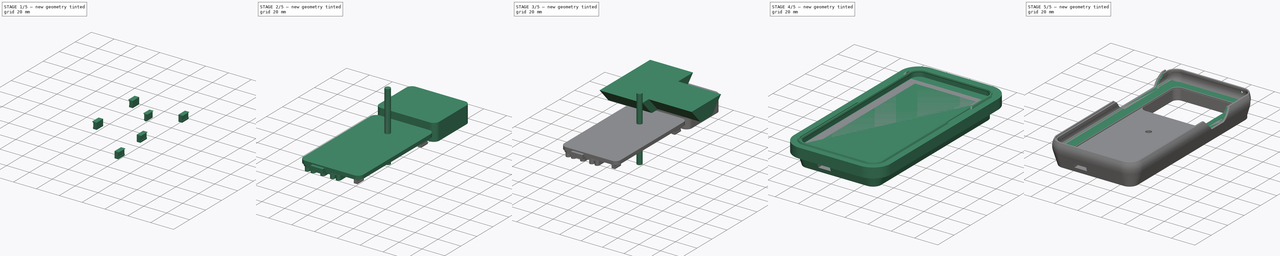
[diagram: build sequence overview — one tinted view per stage of 5, left to right]
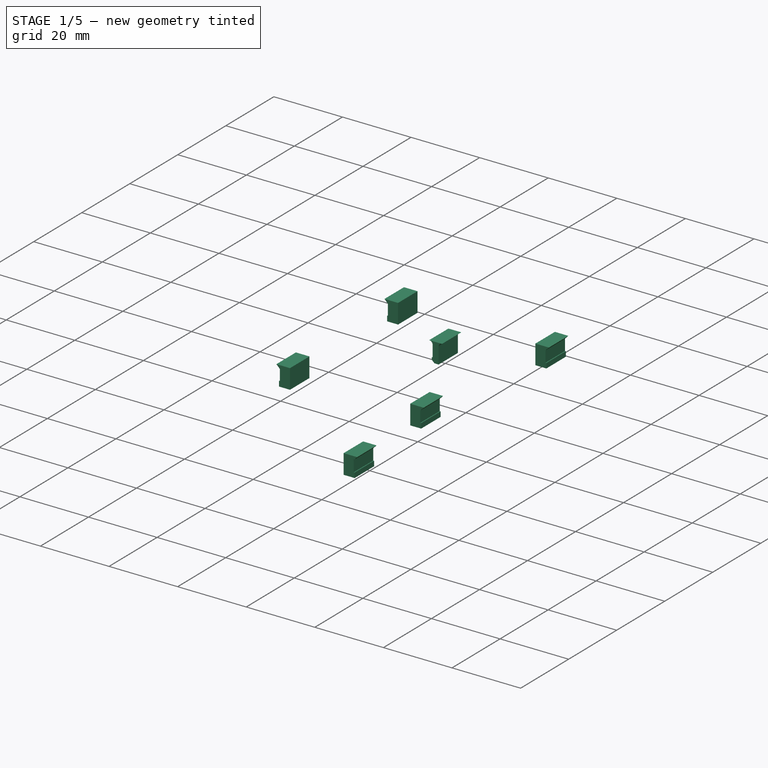
[diagram: stage 1 of 5 — iso view after this stage's code; geometry added in this stage tinted green]
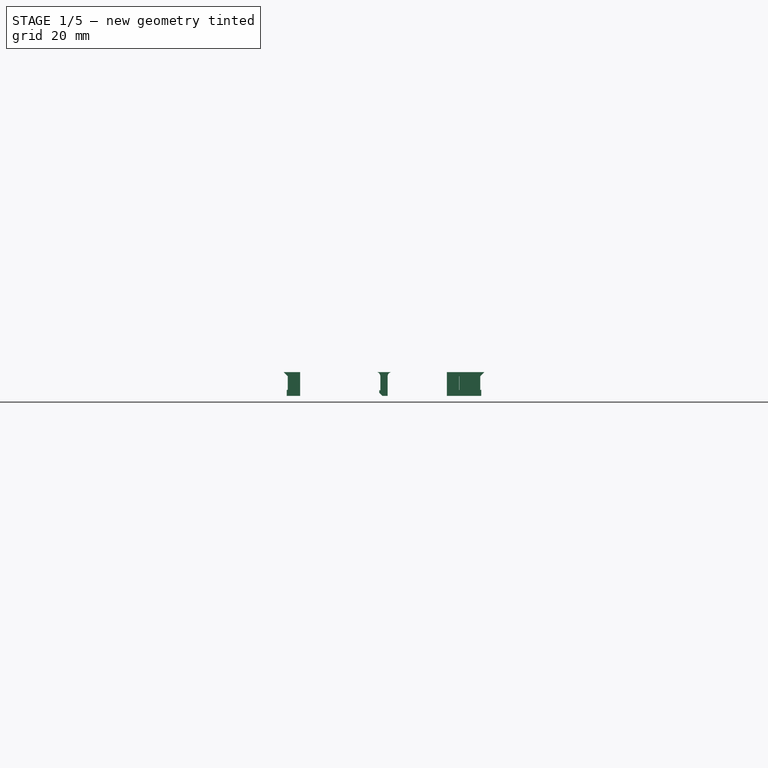
[diagram: stage 1 of 5 — front view after this stage's code; geometry added in this stage tinted green]
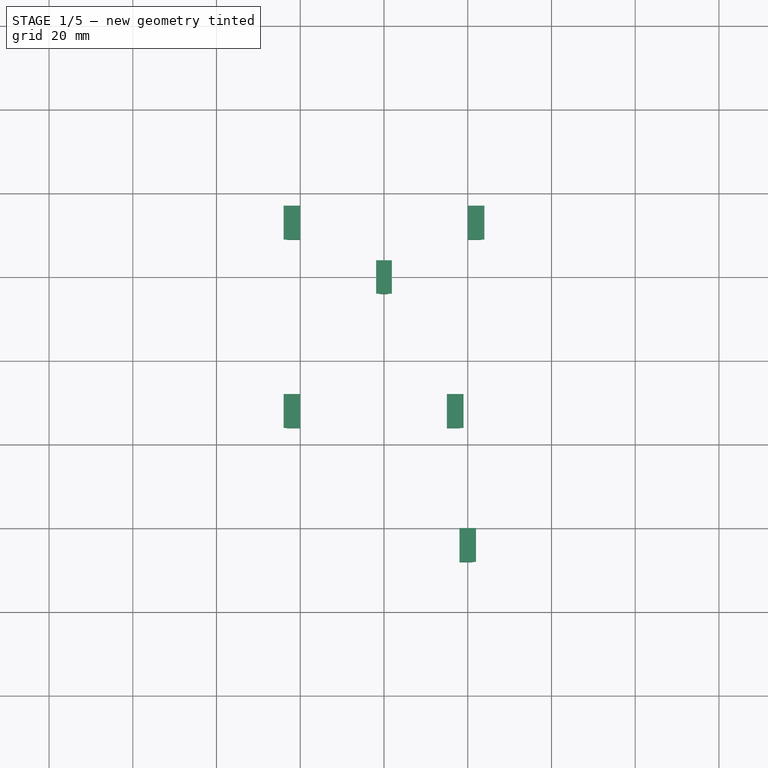
[diagram: stage 1 of 5 — top view after this stage's code; geometry added in this stage tinted green]
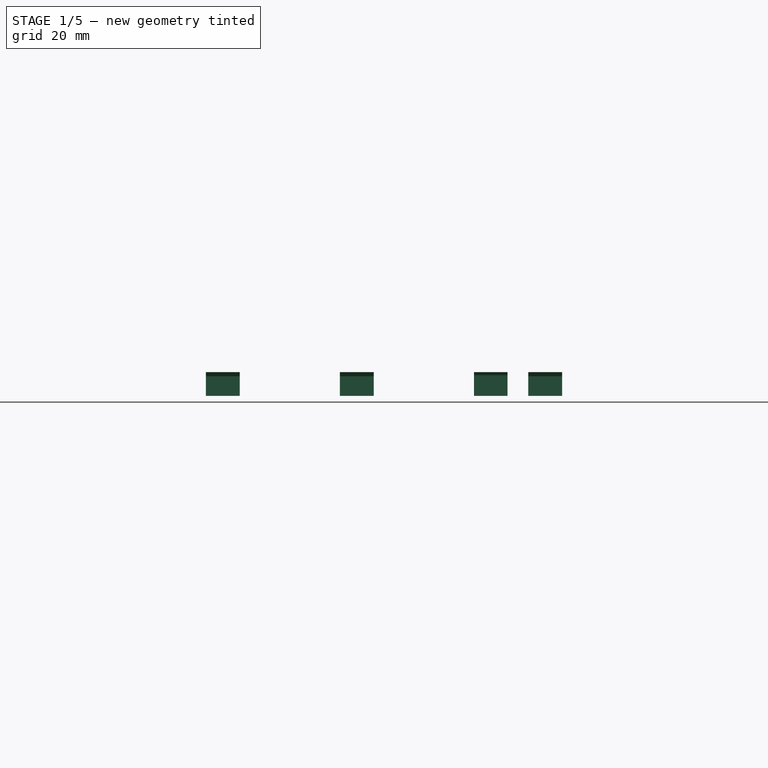
[diagram: stage 1 of 5 — right view after this stage's code; geometry added in this stage tinted green]
FCSTD DOCUMENT  (FreeCAD 0.18R16093 (Git))
Label: samsung_s9_v14
License: All rights reserved
LicenseURL: http://en.wikipedia.org/wiki/All_rights_reserved
objects: Sketcher::SketchObject×24, Part::Extrusion×15, PartDesign::Body×12, Part::MultiFuse×11, PartDesign::FeatureBase×11, Part::Cut×7, Part::Cylinder×7, Image::ImagePlane×4, Spreadsheet::Sheet×3, Part::Sweep×3, PartDesign::AdditivePipe×1, Part::MultiCommon×1, Part::Chamfer×1, Part::Box×1
note: 95 computed .brp shape members not serialized (recipe doc carries the construction recipe); baked Part::Feature solids carry a one-line shape summary decoded from their .brp

FEATURE [Sketcher::SketchObject] Sketch026  label="clip"
  MapMode = 5
  Placement = pos=(0,0,0) rot=(1,0,0;1.5708rad)
  Support = -> [XZ_Plane]
  expr: Constraints[18] = p.csbz
  expr: Constraints[19] = p.ich
  expr: Constraints[17] = -p.csts
  sketch-geometry (10):
    g0: LineSegment StartX=-0.875 StartY=-9.83 StartZ=0 EndX=-0.875 EndY=-13.18 EndZ=0
    g1: LineSegment StartX=-0.875 StartY=-13.18 StartZ=0 EndX=-1.125 EndY=-13.18 EndZ=0
    g2: LineSegment StartX=-1.125 StartY=-13.18 StartZ=0 EndX=-1.125 EndY=-13.78 EndZ=0
    g3: LineSegment StartX=-1.125 StartY=-13.78 StartZ=0 EndX=-0.375 EndY=-14.53 EndZ=0
    g4: LineSegment StartX=-0.375 StartY=-14.53 StartZ=0 EndX=0.875 EndY=-14.53 EndZ=0
    g5: LineSegment StartX=0.875 StartY=-14.53 StartZ=0 EndX=0.875 EndY=-9.83 EndZ=0
    g6: LineSegment StartX=1.875 StartY=-8.83 StartZ=0 EndX=-1.875 EndY=-8.83 EndZ=0
    g7: GeomPoint X=0 Y=-5.58 Z=0
    g8: ArcOfCircle CenterX=1.875 CenterY=-9.83 CenterZ=0 NormalX=0 NormalY=0 NormalZ=1 AngleXU=0 Radius=1 StartAngle=1.5708 EndAngle=3.14159
    g9: ArcOfCircle CenterX=-1.875 CenterY=-9.83 CenterZ=0 NormalX=0 NormalY=0 NormalZ=1 AngleXU=0 Radius=1 StartAngle=-2.7e-15 EndAngle=1.5708
  constraints (28):
    c: Vertical(g0)
    c: Coincident(g0,g1)
    c: Horizontal(g1)
    c: Coincident(g1,g2)
    c: Coincident(g2,g3)
    c: Coincident(g3,g4)
    c: Horizontal(g4)
    c: Coincident(g4,g5)
    c: Vertical(g5)
    c: Symmetric(g5,g0,g-2)
    c: DistanceX(g0,g5) = 1.75
    c: Vertical(g2)
    c: Angle(g3,g2) = 2.35619
    c: DistanceX(g1,g1) = 0.25
    c: DistanceY(g2,g2) = 0.6
    c: DistanceX(g2,g3) = 0.75
    c: PointOnObject(g7,g-2)
    c: DistanceY(g7,g-1) = 5.58
    c: DistanceY(g4,g7) = 8.95
    c: DistanceY(g6,g7) = 3.25
    c: Horizontal(g6)
    c: Tangent(g8,g5) = 1.5708
    c: Vertical(g8,g8)
    c: Coincident(g8,g6)
    c: Radius(g8) = 1
    c: Tangent(g9,g0) = 1.5708
    c: Vertical(g9,g9)
    c: Coincident(g6,g9)
FEATURE [Sketcher::SketchObject] Sketch027  label="cliphole"
  ExternalGeometry = -> [Sketch026]
  MapMode = 5
  Placement = pos=(0,0,0) rot=(1,0,0;1.5708rad)
  Support = -> [XZ_Plane]
  sketch-geometry (11):
    g0: LineSegment [constr] StartX=1.875 StartY=-8.83 StartZ=0 EndX=1.975 EndY=-8.83 EndZ=0
    g1: LineSegment StartX=1.975 StartY=-8.83 StartZ=0 EndX=-1.975 EndY=-8.83 EndZ=0
    g2: LineSegment StartX=-1.975 StartY=-8.83 StartZ=0 EndX=-0.975 EndY=-9.83 EndZ=0
    g3: LineSegment StartX=-1.225 StartY=-14.53 StartZ=0 EndX=0.875 EndY=-14.53 EndZ=0
    g4: LineSegment StartX=0.875 StartY=-14.53 StartZ=0 EndX=1.975 EndY=-14.53 EndZ=0
    g5: LineSegment StartX=1.975 StartY=-14.53 StartZ=0 EndX=1.975 EndY=-8.83 EndZ=0
    g6: LineSegment [constr] StartX=-0.875 StartY=-9.83 StartZ=0 EndX=-0.975 EndY=-9.83 EndZ=0
    g7: LineSegment [constr] StartX=-1.875 StartY=-8.83 StartZ=0 EndX=-1.975 EndY=-8.83 EndZ=0
    g8: LineSegment StartX=-1.225 StartY=-14.53 StartZ=0 EndX=-1.225 EndY=-13.08 EndZ=0
    g9: LineSegment StartX=-1.225 StartY=-13.08 StartZ=0 EndX=-0.975 EndY=-13.08 EndZ=0
    g10: LineSegment StartX=-0.975 StartY=-9.83 StartZ=0 EndX=-0.975 EndY=-13.08 EndZ=0
  constraints (29):
    c: Coincident(g0,g-3)
    c: Horizontal(g0)
    c: DistanceX(g0,g0) = 0.1
    c: Coincident(g1,g0)
    c: Coincident(g2,g1)
    c: Coincident(g3,g-5)
    c: Horizontal(g3)
    c: Coincident(g3,g4)
    c: Horizontal(g4)
    c: Coincident(g4,g5)
    c: Coincident(g5,g1)
    c: Vertical(g5)
    c: Coincident(g6,g-6)
    c: Coincident(g7,g-3)
    c: Equal(g0,g7)
    c: Horizontal(g7)
    c: Coincident(g1,g7)
    c: Coincident(g2,g6)
    c: DistanceX(g6,g6) = 0.1
    c: Coincident(g8,g3)
    c: Vertical(g8)
    c: DistanceX(g8,g-4) = 0.1
    c: DistanceY(g-4,g8) = 0.1
    c: Horizontal(g6)
    c: Coincident(g9,g8)
    c: Horizontal(g9)
    c: Coincident(g10,g2)
    c: Coincident(g10,g9)
    c: Vertical(g10)
FEATURE [PartDesign::Body] Body
  Group = -> [Sketch,Sketch002,Sketch003,Sketch004,Sketch005,AdditivePipe,Sketch006,Sketch007,Sketch008,Sketch009,Sketch012,Sketch015,Sketch016,Sketch018,Sketch019,Sketch025,Sketch026,Sketch027]
  Origin = -> Origin
  Tip = -> AdditivePipe
FEATURE [Sketcher::SketchObject] Sketch017  label="cameracutout"
  MapMode = 2
  Support = -> [Body]
  sketch-geometry (13):
    g0: ArcOfCircle CenterX=3.5 CenterY=52.15 CenterZ=0 NormalX=0 NormalY=0 NormalZ=1 AngleXU=0 Radius=4 StartAngle=1e-16 EndAngle=1.5708
    g1: ArcOfCircle CenterX=-18.2103 CenterY=52.0254 CenterZ=0 NormalX=0 NormalY=0 NormalZ=1 AngleXU=0 Radius=4 StartAngle=1.5708 EndAngle=3.14159
    g2: ArcOfCircle CenterX=-18.2103 CenterY=42.1402 CenterZ=0 NormalX=0 NormalY=0 NormalZ=1 AngleXU=0 Radius=4 StartAngle=3.14159 EndAngle=4.71239
    g3: ArcOfCircle CenterX=-12.1444 CenterY=34.1402 CenterZ=0 NormalX=0 NormalY=0 NormalZ=1 AngleXU=0 Radius=4 StartAngle=2e-16 EndAngle=1.5708
    g4: ArcOfCircle CenterX=-4.14435 CenterY=33.3 CenterZ=0 NormalX=0 NormalY=0 NormalZ=1 AngleXU=0 Radius=4 StartAngle=3.14159 EndAngle=4.71239
    g5: ArcOfCircle CenterX=3.5 CenterY=33.3 CenterZ=0 NormalX=0 NormalY=0 NormalZ=1 AngleXU=0 Radius=4 StartAngle=4.71239 EndAngle=6.28319
    g6: LineSegment StartX=-3.5 StartY=56.15 StartZ=0 EndX=3.5 EndY=56.15 EndZ=0
    g7: LineSegment StartX=7.5 StartY=52.15 StartZ=0 EndX=7.5 EndY=33.3 EndZ=0
    g8: LineSegment StartX=3.5 StartY=29.3 StartZ=0 EndX=-4.14435 EndY=29.3 EndZ=0
    g9: LineSegment StartX=-8.14435 StartY=33.3 StartZ=0 EndX=-8.14435 EndY=34.1402 EndZ=0
    g10: LineSegment StartX=-12.1444 StartY=38.1402 StartZ=0 EndX=-18.2103 EndY=38.1402 EndZ=0
    g11: LineSegment StartX=-22.2103 StartY=42.1402 StartZ=0 EndX=-22.2103 EndY=52.0254 EndZ=0
    g12: LineSegment StartX=-18.2103 StartY=56.0254 StartZ=0 EndX=-7.13272 EndY=56.0254 EndZ=0
  constraints (37):
    c: Equal(g1,g2)
    c: Equal(g2,g3)
    c: Equal(g3,g4)
    c: Equal(g4,g5)
    c: Coincident(g6,g0)
    c: Horizontal(g6)
    c: Coincident(g7,g0)
    c: Coincident(g7,g5)
    c: Coincident(g8,g5)
    c: Coincident(g8,g4)
    c: Horizontal(g8)
    c: Coincident(g9,g4)
    c: Coincident(g9,g3)
    c: Coincident(g10,g2)
    c: Coincident(g11,g2)
    c: Coincident(g11,g1)
    c: Coincident(g12,g1)
    c: Vertical(g7)
    c: Vertical(g9)
    c: Vertical(g11)
    c: Horizontal(g12)
    c: Horizontal(g10)
    c: Coincident(g10,g3)
    c: Horizontal(g4,g4)
    c: Horizontal(g4,g5)
    c: Vertical(g5,g5)
    c: Vertical(g4,g4)
    c: Horizontal(g3,g3)
    c: Vertical(g3,g3)
    c: Vertical(g1,g1)
    c: Vertical(g1,g2)
    c: Horizontal(g2,g2)
    c: Horizontal(g1,g1)
    c: Radius(g3) = 4
    c: DistanceY(g-1,g0) = 56.15
    c: DistanceX(g-1,g5) = 7.5
    c: DistanceY(g-1,g5) = 29.3
FEATURE [Part::Extrusion] Extrude014  label="ClipPin"
  Base = -> Sketch026
  Dir = (0,-1,-2e-16)
  DirMode = 2
  FaceMakerClass = Part::FaceMakerBullseye
  LengthFwd = 4
  LengthRev = 4
  Solid = true
  Symmetric = false
FEATURE [Part::Extrusion] Extrude015  label="Cliphole"
  Base = -> Sketch027
  Dir = (0,-1,-2e-16)
  DirMode = 2
  FaceMakerClass = Part::FaceMakerBullseye
  LengthFwd = 4.05
  LengthRev = 4.05
  Solid = true
  Symmetric = false
FEATURE [PartDesign::Body] Body003  label="Pin2"
  BaseFeature = -> Extrude014
  Group = -> [Clone002]
  Origin = -> Origin003
  Placement = pos=(-22,13,0) rot=(0,0,1;0rad)
  Tip = -> Clone002
FEATURE [PartDesign::FeatureBase] Clone003
  BaseFeature = -> Extrude014
FEATURE [PartDesign::Body] Body004  label="Pin3"
  BaseFeature = -> Extrude014
  Group = -> [Clone003]
  Origin = -> Origin004
  Placement = pos=(22,13,0) rot=(0,0,1;3.14159rad)
  Tip = -> Clone003
FEATURE [PartDesign::FeatureBase] Clone004
  BaseFeature = -> Extrude014
FEATURE [PartDesign::Body] Body005  label="Pin4"
  BaseFeature = -> Extrude014
  Group = -> [Clone004]
  Origin = -> Origin005
  Placement = pos=(20,-64,0) rot=(0,0,1;3.14159rad)
  Tip = -> Clone004
FEATURE [PartDesign::FeatureBase] Clone005
  BaseFeature = -> Extrude014
FEATURE [PartDesign::Body] Body006  label="Pin5"
  BaseFeature = -> Extrude014
  Group = -> [Clone005]
  Origin = -> Origin006
  Placement = pos=(17,-32,0) rot=(0,0,1;3.14159rad)
  Tip = -> Clone005
FEATURE [PartDesign::FeatureBase] Clone006
  BaseFeature = -> Extrude015
FEATURE [PartDesign::Body] Body007  label="CH1"
  BaseFeature = -> Extrude015
  Group = -> [Clone006]
  Origin = -> Origin007
  Placement = pos=(-22,-32,0) rot=(0,0,1;0rad)
  Tip = -> Clone006
FEATURE [PartDesign::FeatureBase] Clone007
  BaseFeature = -> Extrude015
FEATURE [PartDesign::Body] Body008  label="CH2"
  BaseFeature = -> Extrude015
  Group = -> [Clone007]
  Origin = -> Origin008
  Placement = pos=(-22,13,0) rot=(0,0,1;0rad)
  Tip = -> Clone007
FEATURE [PartDesign::FeatureBase] Clone008
  BaseFeature = -> Extrude015
FEATURE [PartDesign::Body] Body009  label="CH3"
  BaseFeature = -> Extrude015
  Group = -> [Clone008]
  Origin = -> Origin009
  Placement = pos=(22,13,0) rot=(0,0,1;3.14159rad)
  Tip = -> Clone008
FEATURE [PartDesign::FeatureBase] Clone009
  BaseFeature = -> Extrude015
FEATURE [PartDesign::Body] Body010  label="CH4"
  BaseFeature = -> Extrude015
  Group = -> [Clone009]
  Origin = -> Origin010
  Placement = pos=(17,-32,0) rot=(0,0,1;3.14159rad)
  Tip = -> Clone009
FEATURE [PartDesign::FeatureBase] Clone010
  BaseFeature = -> Extrude015
FEATURE [Part::MultiFuse] Fusion010  label="ClipHoles"
  Shapes = -> [Body007,Body008,Body009,Body010,Body011]
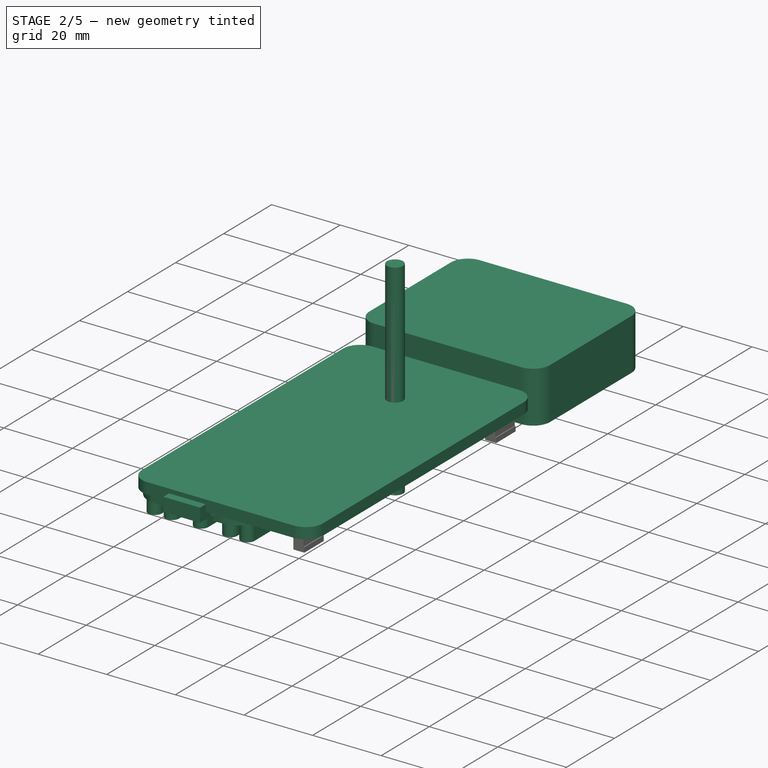
[diagram: stage 2 of 5 — iso view after this stage's code; geometry added in this stage tinted green]
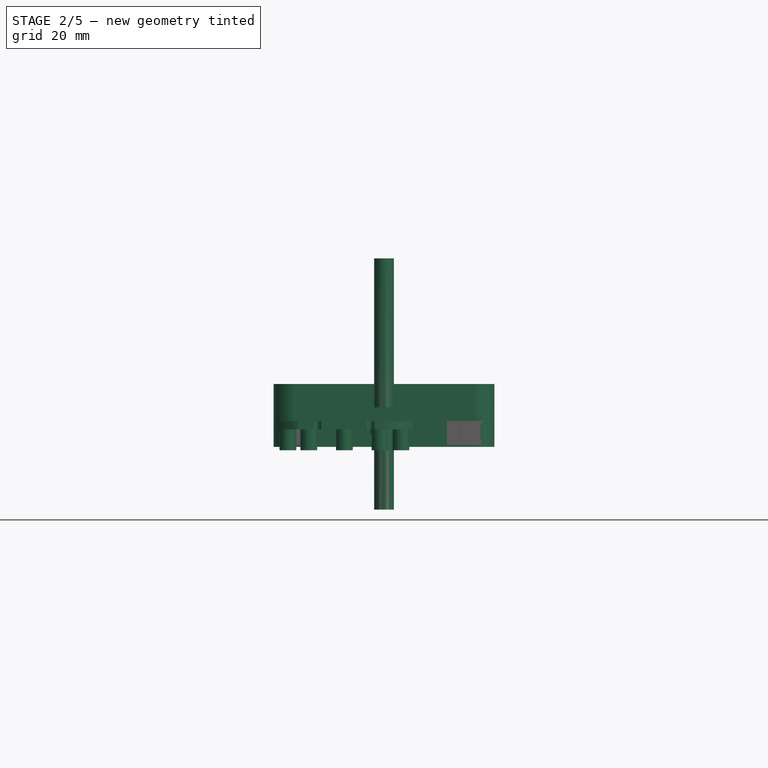
[diagram: stage 2 of 5 — front view after this stage's code; geometry added in this stage tinted green]
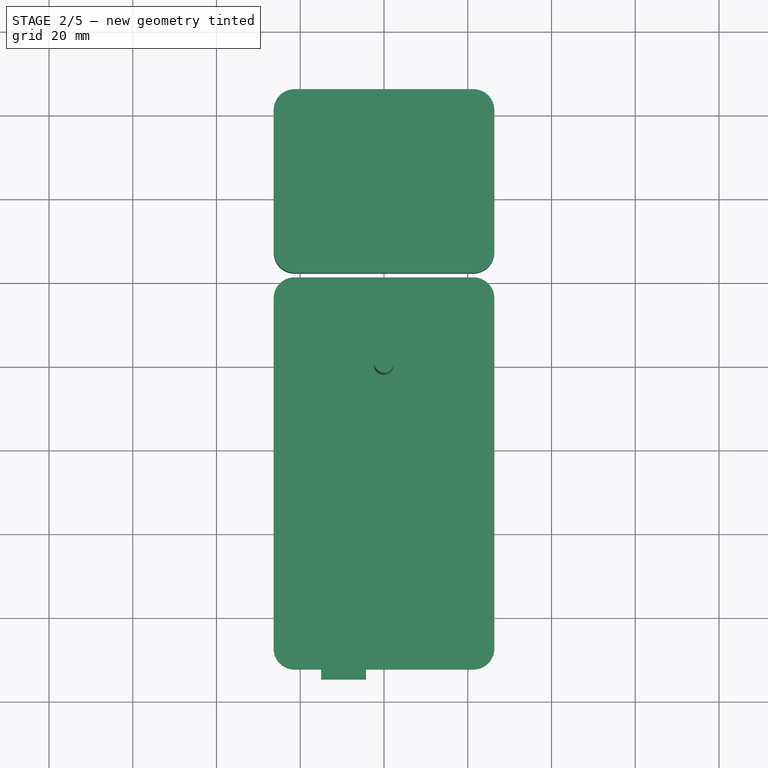
[diagram: stage 2 of 5 — top view after this stage's code; geometry added in this stage tinted green]
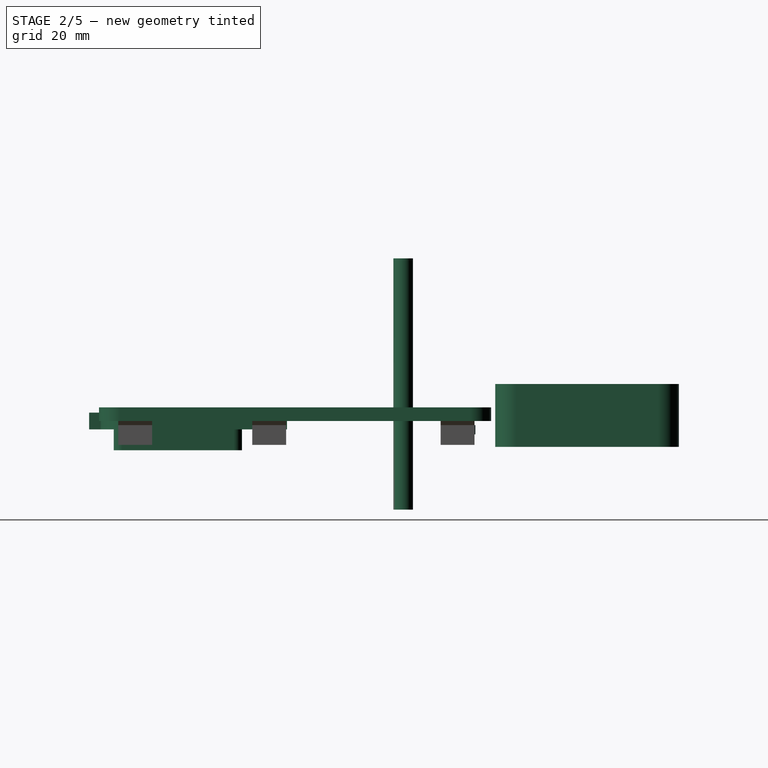
[diagram: stage 2 of 5 — right view after this stage's code; geometry added in this stage tinted green]
FEATURE [Part::Cylinder] Cylinder004  label="CoilCenterBore"
  Angle = 360
  AttacherType = Attacher::AttachEngine3D
  Height = 60
  Placement = pos=(0,0,-30) rot=(0,0,1;0rad)
  Radius = 2.35
FEATURE [Sketcher::SketchObject] Sketch021  label="topsketch001"
  MapMode = 5
  Support = -> [XY_Plane001]
  expr: Constraints[34] = p.pbtr
  expr: Constraints[33] = p.pty
  expr: Constraints[32] = p.ptx
  sketch-geometry (12):
    g0: ArcOfCircle CenterX=-26.35 CenterY=65.85 CenterZ=0 NormalX=0 NormalY=0 NormalZ=1 AngleXU=0 Radius=8 StartAngle=1.5708 EndAngle=3.14159
    g1: ArcOfCircle CenterX=26.35 CenterY=65.85 CenterZ=0 NormalX=0 NormalY=0 NormalZ=1 AngleXU=0 Radius=8 StartAngle=-3.64e-14 EndAngle=1.5708
    g2: ArcOfCircle CenterX=26.35 CenterY=-65.85 CenterZ=0 NormalX=0 NormalY=0 NormalZ=1 AngleXU=0 Radius=8 StartAngle=4.71239 EndAngle=6.28319
    g3: ArcOfCircle CenterX=-26.35 CenterY=-65.85 CenterZ=0 NormalX=0 NormalY=0 NormalZ=1 AngleXU=0 Radius=8 StartAngle=3.14159 EndAngle=4.71239
    g4: LineSegment StartX=-34.35 StartY=65.85 StartZ=0 EndX=-34.35 EndY=-65.85 EndZ=0
    g5: LineSegment StartX=-26.35 StartY=-73.85 StartZ=0 EndX=26.35 EndY=-73.85 EndZ=0
    g6: LineSegment StartX=34.35 StartY=-65.85 StartZ=0 EndX=34.35 EndY=65.85 EndZ=0
    g7: LineSegment StartX=26.35 StartY=73.85 StartZ=0 EndX=-26.35 EndY=73.85 EndZ=0
    g8: LineSegment [constr] StartX=-26.35 StartY=73.85 StartZ=0 EndX=-26.35 EndY=-73.85 EndZ=0
    g9: LineSegment [constr] StartX=26.35 StartY=73.85 StartZ=0 EndX=26.35 EndY=-73.85 EndZ=0
    g10: LineSegment [constr] StartX=34.35 StartY=-65.85 StartZ=0 EndX=-34.35 EndY=-65.85 EndZ=0
    g11: LineSegment [constr] StartX=34.35 StartY=65.85 StartZ=0 EndX=-34.35 EndY=65.85 EndZ=0
  constraints (35):
    c: Coincident(g4,g0)
    c: Coincident(g4,g3)
    c: Coincident(g5,g3)
    c: Coincident(g5,g2)
    c: Coincident(g6,g2)
    c: Coincident(g6,g1)
    c: Coincident(g7,g0)
    c: Coincident(g7,g1)
    c: Vertical(g4)
    c: Vertical(g6)
    c: Horizontal(g7)
    c: Horizontal(g5)
    c: Coincident(g8,g0)
    c: Coincident(g8,g3)
    c: Vertical(g8)
    c: Coincident(g9,g1)
    c: Coincident(g9,g2)
    c: Vertical(g9)
    c: Coincident(g10,g2)
    c: Coincident(g10,g3)
    c: Horizontal(g10)
    c: Coincident(g11,g1)
    c: Coincident(g11,g0)
    c: PointOnObject(g0,g8)
    c: PointOnObject(g3,g8)
    c: PointOnObject(g0,g11)
    c: PointOnObject(g3,g10)
    c: PointOnObject(g1,g9)
    c: PointOnObject(g1,g11)
    c: PointOnObject(g2,g10)
    c: PointOnObject(g2,g9)
    c: Symmetric(g0,g2,g-1)
    c: DistanceX(g0,g1) = 68.7
    c: DistanceY(g2,g1) = 147.7
    c: DistanceY(g0,g0) = 8
FEATURE [Spreadsheet::Sheet] Spreadsheet001  label="p001"
  cells = B7=Tolerance Shell; C7=tsh; D7(tsh)=0.3; E7=Tolerance added to the Outside of the Phone; B8=Phone Total x; C8=ptx; D8(ptx)=68.7; E8=totall length of phoe (y-dimension); B9=Phone Total y; C9=pty; D9(pty)=147.7; E9=totall length of phoe (y-dimension); B10=Phone Total z; C10=ptz; D10(ptz)=8.5; E10=total thickness of phone (ptz); B13=Phone Bevel Sideradius; C13=pbsr; D13(pbsr)=8; C14=pbtr; D14(pbtr)=8; B16=Shell Thickness; C16=#sth; D16(sth)=1.25; E16=Thickness of the Shell; B17=Shell Inner Overhang; C17=#soh; D17(soh)=0.75; E17=Overhang over inner Diameter; B19=Distance Phneshell Carshell; C19=#dpscs; D19(dpscs)=0.15; E19=Distance between phone shell and car shell; C20=#csth; D20(csth)=1.25; E20=Car Shell Thickness; C22=#cpth; D22(cpth)=1; E22=Charger PCB thickness; C23=#cptko; D23(cptko)=1.7; E23=Charger PCB Top Keepout; D24=0.8; E24=Charge PCB selected Bottom Keepout (for LED TTH-Pins); D25=2.5; E25=Charge PCB selected Top Keppout (for USB-Connector) (on Top of PCB Thickness); D26=4; E26=LED Keepout Height (total height of LED Keepout); B27=CarshellBottomZ; C27=#csbz; D27(csbz)==D26 + 2 * D20; E27==dpscs
FEATURE [Sketcher::SketchObject] Sketch022  label="TopWindowCutOut"
  ExternalGeometry = -> [Sketch021]
  MapMode = 5
  Support = -> [XY_Plane001]
  sketch-geometry (8):
    g0: LineSegment StartX=26.35 StartY=60.85 StartZ=0 EndX=26.35 EndY=27 EndZ=0
    g1: ArcOfCircle CenterX=21.35 CenterY=60.85 CenterZ=0 NormalX=0 NormalY=0 NormalZ=1 AngleXU=0 Radius=5 StartAngle=0 EndAngle=1.5708
    g2: ArcOfCircle CenterX=-21.35 CenterY=60.85 CenterZ=0 NormalX=0 NormalY=0 NormalZ=1 AngleXU=0 Radius=5 StartAngle=1.5708 EndAngle=3.14159
    g3: ArcOfCircle CenterX=-21.35 CenterY=27 CenterZ=0 NormalX=0 NormalY=0 NormalZ=1 AngleXU=0 Radius=5 StartAngle=3.14159 EndAngle=4.71239
    g4: ArcOfCircle CenterX=21.35 CenterY=27 CenterZ=0 NormalX=0 NormalY=0 NormalZ=1 AngleXU=0 Radius=5 StartAngle=4.71239 EndAngle=6.28319
    g5: LineSegment StartX=21.35 StartY=65.85 StartZ=0 EndX=-21.35 EndY=65.85 EndZ=0
    g6: LineSegment StartX=21.35 StartY=22 StartZ=0 EndX=-21.35 EndY=22 EndZ=0
    g7: LineSegment StartX=-26.35 StartY=60.85 StartZ=0 EndX=-26.35 EndY=27 EndZ=0
  constraints (24):
    c: Vertical(g0)
    c: Coincident(g0,g1)
    c: Horizontal(g1,g0)
    c: Vertical(g1,g1)
    c: Coincident(g5,g1)
    c: Coincident(g5,g2)
    c: Horizontal(g5)
    c: Equal(g2,g1)
    c: Equal(g4,g3)
    c: Coincident(g0,g4)
    c: Coincident(g6,g4)
    c: Horizontal(g4,g0)
    c: Vertical(g4,g4)
    c: Symmetric(g1,g2,g-2)
    c: DistanceX(g0,g-3) = 8
    c: Tangent(g7,g2) = -1.5708
    c: DistanceY(g1,g-3) = 8
    c: Radius(g2) = 5
    c: Tangent(g7,g3) = -1.5708
    c: Tangent(g6,g3) = 1.5708
    c: Horizontal(g6)
    c: Vertical(g7)
    c: Equal(g3,g2)
    c: DistanceY(g-1,g3) = 22
FEATURE [Part::Extrusion] Extrude010  label="TopWindowCutOutExtrude"
  Base = -> Sketch022
  Dir = (0,0,1)
  DirMode = 2
  FaceMakerClass = Part::FaceMakerBullseye
  LengthFwd = 0
  LengthRev = 15
  Solid = true
  Symmetric = false
FEATURE [Part::Extrusion] Extrude011
  Base = -> Sketch019
  Dir = (0,0,1)
  DirMode = 2
  FaceMakerClass = Part::FaceMakerBullseye
  LengthFwd = 0
  LengthRev = 4
  Placement = pos=(-9,-55,-6.83) rot=(0,0,1;0rad)
  Solid = true
  Symmetric = false
  expr: Placement.Base.z = p.csts - p.csth
FEATURE [Part::Cylinder] Cylinder005
  Angle = 360
  AttacherType = Attacher::AttachEngine3D
  Height = 2.2
  Placement = pos=(0,0,-2.2) rot=(0,0,1;0rad)
  Radius = 3.25
  expr: Radius = 6.5 / 2
FEATURE [Part::Cylinder] Cylinder006
  Angle = 360
  AttacherType = Attacher::AttachEngine3D
  Height = 4.7
  Placement = pos=(0,0,-4.7) rot=(0,0,1;0rad)
  Radius = 2
FEATURE [Part::MultiFuse] Fusion007  label="TaperedHole"
  Placement = pos=(0,14,-9.83) rot=(0,0,1;0rad)
  Shapes = -> [Cylinder005,Cylinder006]
  expr: Placement.Base.y = 38 / 2 - 5
  expr: Placement.Base.z = p002.fpbz
FEATURE [PartDesign::FeatureBase] Clone
  BaseFeature = -> Fusion007
  Placement = pos=(0,14,-9.83) rot=(0,0,1;0rad)
FEATURE [PartDesign::Body] Body001  label="TaperedHoleClone"
  BaseFeature = -> Fusion007
  Group = -> [Clone]
  Origin = -> Origin001
  Placement = pos=(0,-38,0) rot=(0,0,1;0rad)
  Tip = -> Clone
FEATURE [Spreadsheet::Sheet] Spreadsheet002  label="p002"
  cells = B7=Tolerance Shell; C7=tsh; D7(tsh)=0.3; E7=Tolerance added to the Outside of the Phone; B8=Phone Total x; C8=ptx; D8(ptx)=68.7; E8=totall length of phoe (y-dimension); B9=Phone Total y; C9=pty; D9(pty)=147.7; E9=totall length of phoe (y-dimension); B10=Phone Total z; C10=ptz; D10(ptz)=8.5; E10=total thickness of phone (ptz); B13=Phone Bevel Sideradius; C13=pbsr; D13(pbsr)=8; C14=pbtr; D14(pbtr)=8; B16=Shell Thickness; C16=#sth; D16(sth)=1.25; E16=Thickness of the Shell; B17=Shell Inner Overhang; C17=#soh; D17(soh)=0.75; E17=Overhang over inner Diameter; B19=Distance Phneshell Carshell; C19=#dpscs; D19(dpscs)=0.08; E19=Distance between phone shell and car shell; C20=#csth; D20(csth)=1.25; E20=Car Shell Thickness; C22=#cpth; D22(cpth)=1; E22=Charger PCB thickness; C23=#cptko; D23(cptko)=1.7; E23=Charger PCB Top Keepout; D24=0.8; E24=Charge PCB selected Bottom Keepout (for LED TTH-Pins); D25=2.5; E25=Charge PCB selected Top Keppout (for USB-Connector) (on Top of PCB Thickness); D26=4; E26=LED Keepout Height (total height of LED Keepout); B27=CarshellBottomZ; C27=#csbz; D27(csbz)==3 + D20 + 4.7; E27==dpscs; B29=ChargeShellTopStart; C29=#csts; D29(csts)==-(D10 / 2 + D16 + D19); E29=Z-Position of The Top of the ChargeShell Bottom; B30=FerritPlateBottomZ; C30=#fpbz; D30(fpbz)==D29 - D20 - 3; E30=Lower End of the Ferrit Plate
FEATURE [Sketcher::SketchObject] Sketch024  label="topsketch002"
  MapMode = 5
  Support = -> [XY_Plane003]
  expr: Constraints[34] = p.pbtr
  expr: Constraints[33] = p.pty
  expr: Constraints[32] = p.ptx
  sketch-geometry (12):
    g0: ArcOfCircle CenterX=-26.35 CenterY=65.85 CenterZ=0 NormalX=0 NormalY=0 NormalZ=1 AngleXU=0 Radius=8 StartAngle=1.5708 EndAngle=3.14159
    g1: ArcOfCircle CenterX=26.35 CenterY=65.85 CenterZ=0 NormalX=0 NormalY=0 NormalZ=1 AngleXU=0 Radius=8 StartAngle=-3.64e-14 EndAngle=1.5708
    g2: ArcOfCircle CenterX=26.35 CenterY=-65.85 CenterZ=0 NormalX=0 NormalY=0 NormalZ=1 AngleXU=0 Radius=8 StartAngle=4.71239 EndAngle=6.28319
    g3: ArcOfCircle CenterX=-26.35 CenterY=-65.85 CenterZ=0 NormalX=0 NormalY=0 NormalZ=1 AngleXU=0 Radius=8 StartAngle=3.14159 EndAngle=4.71239
    g4: LineSegment StartX=-34.35 StartY=65.85 StartZ=0 EndX=-34.35 EndY=-65.85 EndZ=0
    g5: LineSegment StartX=-26.35 StartY=-73.85 StartZ=0 EndX=26.35 EndY=-73.85 EndZ=0
    g6: LineSegment StartX=34.35 StartY=-65.85 StartZ=0 EndX=34.35 EndY=65.85 EndZ=0
    g7: LineSegment StartX=26.35 StartY=73.85 StartZ=0 EndX=-26.35 EndY=73.85 EndZ=0
    g8: LineSegment [constr] StartX=-26.35 StartY=73.85 StartZ=0 EndX=-26.35 EndY=-73.85 EndZ=0
    g9: LineSegment [constr] StartX=26.35 StartY=73.85 StartZ=0 EndX=26.35 EndY=-73.85 EndZ=0
    g10: LineSegment [constr] StartX=34.35 StartY=-65.85 StartZ=0 EndX=-34.35 EndY=-65.85 EndZ=0
    g11: LineSegment [constr] StartX=34.35 StartY=65.85 StartZ=0 EndX=-34.35 EndY=65.85 EndZ=0
  constraints (35):
    c: Coincident(g4,g0)
    c: Coincident(g4,g3)
    c: Coincident(g5,g3)
    c: Coincident(g5,g2)
    c: Coincident(g6,g2)
    c: Coincident(g6,g1)
    c: Coincident(g7,g0)
    c: Coincident(g7,g1)
    c: Vertical(g4)
    c: Vertical(g6)
    c: Horizontal(g7)
    c: Horizontal(g5)
    c: Coincident(g8,g0)
    c: Coincident(g8,g3)
    c: Vertical(g8)
    c: Coincident(g9,g1)
    c: Coincident(g9,g2)
    c: Vertical(g9)
    c: Coincident(g10,g2)
    c: Coincident(g10,g3)
    c: Horizontal(g10)
    c: Coincident(g11,g1)
    c: Coincident(g11,g0)
    c: PointOnObject(g0,g8)
    c: PointOnObject(g3,g8)
    c: PointOnObject(g0,g11)
    c: PointOnObject(g3,g10)
    c: PointOnObject(g1,g9)
    c: PointOnObject(g1,g11)
    c: PointOnObject(g2,g10)
    c: PointOnObject(g2,g9)
    c: Symmetric(g0,g2,g-1)
    c: DistanceX(g0,g1) = 68.7
    c: DistanceY(g2,g1) = 147.7
    c: DistanceY(g0,g0) = 8
FEATURE [Sketcher::SketchObject] Sketch023  label="TopWindowCutOut001"
  ExternalGeometry = -> [Sketch024,Sketch020]
  MapMode = 5
  Support = -> [XY_Plane003]
  sketch-geometry (8):
    g0: LineSegment StartX=26.35 StartY=16 StartZ=0 EndX=26.35 EndY=-67.6277 EndZ=0
    g1: ArcOfCircle CenterX=21.35 CenterY=16 CenterZ=0 NormalX=0 NormalY=0 NormalZ=1 AngleXU=0 Radius=5 StartAngle=0 EndAngle=1.5708
    g2: ArcOfCircle CenterX=-21.35 CenterY=16 CenterZ=0 NormalX=0 NormalY=0 NormalZ=1 AngleXU=0 Radius=5 StartAngle=1.5708 EndAngle=3.14159
    g3: ArcOfCircle CenterX=-21.35 CenterY=-67.6277 CenterZ=0 NormalX=0 NormalY=0 NormalZ=1 AngleXU=0 Radius=5 StartAngle=3.14159 EndAngle=4.71239
    g4: ArcOfCircle CenterX=21.35 CenterY=-67.6277 CenterZ=0 NormalX=0 NormalY=0 NormalZ=1 AngleXU=0 Radius=5 StartAngle=4.71239 EndAngle=6.28319
    g5: LineSegment StartX=21.35 StartY=21 StartZ=0 EndX=-21.35 EndY=21 EndZ=0
    g6: LineSegment StartX=21.35 StartY=-72.6277 StartZ=0 EndX=-21.35 EndY=-72.6277 EndZ=0
    g7: LineSegment StartX=-26.35 StartY=16 StartZ=0 EndX=-26.35 EndY=-67.6277 EndZ=0
  constraints (24):
    c: Vertical(g0)
    c: Coincident(g0,g1)
    c: Horizontal(g1,g0)
    c: Vertical(g1,g1)
    c: Coincident(g5,g1)
    c: Coincident(g5,g2)
    c: Horizontal(g5)
    c: Equal(g2,g1)
    c: Equal(g4,g3)
    c: Coincident(g0,g4)
    c: Coincident(g6,g4)
    c: Horizontal(g4,g0)
    c: Vertical(g4,g4)
    c: Symmetric(g1,g2,g-2)
    c: DistanceX(g0,g-3) = 8
    c: Tangent(g7,g2) = -1.5708
    c: Radius(g2) = 5
    c: Tangent(g7,g3) = -1.5708
    c: Tangent(g6,g3) = 1.5708
    c: Horizontal(g6)
    c: Vertical(g7)
    c: Equal(g3,g2)
    c: DistanceY(g-1,g2) = 21
    c: Horizontal(g4,g-5)
FEATURE [Part::Extrusion] Extrude012  label="InnardsCover"
  Base = -> Sketch023
  Dir = (0,0,1)
  DirMode = 2
  FaceMakerClass = Part::FaceMakerBullseye
  LengthFwd = 0
  LengthRev = 3.25
  Placement = pos=(0,0,-5.58) rot=(0,0,1;0rad)
  Solid = true
  Symmetric = false
  expr: LengthRev = p.ich
  expr: Placement.Base.z = p.csts
FEATURE [Sketcher::SketchObject] Sketch025  label="coolong"
  MapMode = 5
  Support = -> [XY_Plane]
  sketch-geometry (24):
    g0: ArcOfCircle CenterX=-9.46807 CenterY=-40.4817 CenterZ=0 NormalX=0 NormalY=0 NormalZ=1 AngleXU=0 Radius=2 StartAngle=0 EndAngle=3.14159
    g1: ArcOfCircle CenterX=-9.46807 CenterY=-67.1238 CenterZ=0 NormalX=0 NormalY=0 NormalZ=1 AngleXU=0 Radius=2 StartAngle=3.14159 EndAngle=6.28319
    g2: LineSegment StartX=-11.4681 StartY=-40.4817 StartZ=0 EndX=-11.4681 EndY=-67.1238 EndZ=0
    g3: LineSegment StartX=-7.46807 StartY=-40.4817 StartZ=0 EndX=-7.46807 EndY=-67.1238 EndZ=0
    g4: ArcOfCircle CenterX=-22.9685 CenterY=-40.4817 CenterZ=0 NormalX=0 NormalY=0 NormalZ=1 AngleXU=0 Radius=2 StartAngle=2.4405e-12 EndAngle=3.14159
    g5: ArcOfCircle CenterX=-22.9685 CenterY=-67.1238 CenterZ=0 NormalX=0 NormalY=0 NormalZ=1 AngleXU=0 Radius=2 StartAngle=3.14159 EndAngle=6.28319
    g6: LineSegment StartX=-24.9685 StartY=-40.4817 StartZ=0 EndX=-24.9685 EndY=-67.1238 EndZ=0
    g7: LineSegment StartX=-20.9685 StartY=-40.4817 StartZ=0 EndX=-20.9685 EndY=-67.1238 EndZ=0
    g8: ArcOfCircle CenterX=-17.9685 CenterY=-40.4817 CenterZ=0 NormalX=0 NormalY=0 NormalZ=1 AngleXU=0 Radius=2 StartAngle=-2.4389e-12 EndAngle=3.14159
    g9: ArcOfCircle CenterX=-17.9685 CenterY=-67.1238 CenterZ=0 NormalX=0 NormalY=0 NormalZ=1 AngleXU=0 Radius=2 StartAngle=3.14159 EndAngle=6.28319
    g10: LineSegment StartX=-19.9685 StartY=-40.4817 StartZ=0 EndX=-19.9685 EndY=-67.1238 EndZ=0
    g11: LineSegment StartX=-15.9685 StartY=-40.4817 StartZ=0 EndX=-15.9685 EndY=-67.1238 EndZ=0
    g12: ArcOfCircle CenterX=-0.967608 CenterY=-67.1238 CenterZ=0 NormalX=0 NormalY=0 NormalZ=1 AngleXU=0 Radius=2 StartAngle=3.14159 EndAngle=6.28319
    g13: ArcOfCircle CenterX=-0.967608 CenterY=-40.4817 CenterZ=0 NormalX=0 NormalY=0 NormalZ=1 AngleXU=0 Radius=2 StartAngle=1.6e-15 EndAngle=3.14159
    g14: LineSegment StartX=1.03239 StartY=-67.1238 StartZ=0 EndX=1.03239 EndY=-40.4817 EndZ=0
    g15: LineSegment StartX=-2.96761 StartY=-67.1238 StartZ=0 EndX=-2.96761 EndY=-40.4817 EndZ=0
    g16: ArcOfCircle CenterX=4.03239 CenterY=-40.4817 CenterZ=0 NormalX=0 NormalY=0 NormalZ=1 AngleXU=0 Radius=2 StartAngle=9e-16 EndAngle=3.14159
    g17: ArcOfCircle CenterX=4.03239 CenterY=-67.1238 CenterZ=0 NormalX=0 NormalY=0 NormalZ=1 AngleXU=0 Radius=2 StartAngle=3.14159 EndAngle=6.28319
    g18: LineSegment StartX=2.03239 StartY=-40.4817 StartZ=0 EndX=2.03239 EndY=-67.1238 EndZ=0
    g19: LineSegment StartX=6.03239 StartY=-40.4817 StartZ=0 EndX=6.03239 EndY=-67.1238 EndZ=0
    g20: LineSegment [constr] StartX=-22.9685 StartY=-67.1238 StartZ=0 EndX=-17.9685 EndY=-67.1238 EndZ=0
    g21: LineSegment [constr] StartX=-0.967608 StartY=-67.1238 StartZ=0 EndX=4.03239 EndY=-67.1238 EndZ=0
    g22: LineSegment [constr] StartX=-17.9685 StartY=-67.1238 StartZ=0 EndX=-9.46807 EndY=-67.1238 EndZ=0
    g23: LineSegment [constr] StartX=-9.46807 StartY=-67.1238 StartZ=0 EndX=-0.967608 EndY=-67.1238 EndZ=0
  constraints (58):
    c: Tangent(g0,g3) = 1.5708
    c: Tangent(g0,g2) = -1.5708
    c: Tangent(g2,g1) = -1.5708
    c: Tangent(g3,g1) = 1.5708
    c: Vertical(g2)
    c: Equal(g0,g1)
    c: Tangent(g4,g7) = 1.5708
    c: Tangent(g4,g6) = -1.5708
    c: Tangent(g6,g5) = -1.5708
    c: Tangent(g7,g5) = 1.5708
    c: Vertical(g6)
    c: Equal(g4,g5)
    c: Equal(g4,g0)
    c: Horizontal(g4,g0)
    c: Horizontal(g5,g1)
    c: Tangent(g8,g11) = 1.5708
    c: Tangent(g8,g10) = -1.5708
    c: Tangent(g10,g9) = -1.5708
    c: Tangent(g11,g9) = 1.5708
    c: Vertical(g10)
    c: Equal(g8,g9)
    c: Tangent(g12,g15) = 1.5708
    c: Tangent(g12,g14) = -1.5708
    c: Tangent(g14,g13) = -1.5708
    c: Tangent(g15,g13) = 1.5708
    c: Vertical(g14)
    c: Equal(g12,g13)
    c: Tangent(g16,g19) = 1.5708
    c: Tangent(g16,g18) = -1.5708
    c: Tangent(g18,g17) = -1.5708
    c: Tangent(g19,g17) = 1.5708
    c: Vertical(g18)
    c: Equal(g16,g17)
    c: Horizontal(g9,g1)
    c: Horizontal(g1,g12)
    c: Horizontal(g12,g17)
    c: Horizontal(g8,g0)
    c: Horizontal(g0,g13)
    c: Horizontal(g13,g16)
    c: Equal(g0,g8)
    c: Equal(g8,g13)
    c: Equal(g13,g16)
    c: DistanceX(g5) = -22.9685
    c: DistanceY(g5) = -67.1238
    c: Coincident(g20,g5)
    c: Coincident(g20,g9)
    c: Coincident(g21,g12)
    c: Coincident(g21,g17)
    c: Equal(g21,g20)
    c: Coincident(g22,g9)
    c: Coincident(g22,g1)
    c: Coincident(g23,g1)
    c: Coincident(g23,g12)
    c: Equal(g23,g22)
    c: DistanceX(g16) = 4.03239
    c: DistanceY(g16) = -40.4817
    c: Radius(g4) = 2
    c: DistanceX(g5,g9) = 5
FEATURE [Part::Extrusion] Extrude013  label="Coolingslits"
  Base = -> Sketch025
  Dir = (0,0,1)
  DirMode = 2
  FaceMakerClass = Part::FaceMakerBullseye
  LengthFwd = 0
  LengthRev = 5
  Placement = pos=(0,0,-10.83) rot=(0,0,1;0rad)
  Solid = true
  Symmetric = false
  expr: Placement.Base.z = p.csts - 4 - p.csth
FEATURE [PartDesign::FeatureBase] Clone001
  BaseFeature = -> Extrude014
FEATURE [PartDesign::Body] Body002  label="Pin1"
  BaseFeature = -> Extrude014
  Group = -> [Clone001]
  Origin = -> Origin002
  Placement = pos=(-22,-32,0) rot=(0,0,1;0rad)
  Tip = -> Clone001
FEATURE [PartDesign::FeatureBase] Clone002
  BaseFeature = -> Extrude014
FEATURE [PartDesign::Body] Body011  label="CH5"
  BaseFeature = -> Extrude015
  Group = -> [Clone010]
  Origin = -> Origin011
  Placement = pos=(20,-64,0) rot=(0,0,1;3.14159rad)
  Tip = -> Clone010
FEATURE [Part::MultiFuse] Fusion008  label="ClipPins"
  Shapes = -> [Body002,Body003,Body004,Body005,Body006]
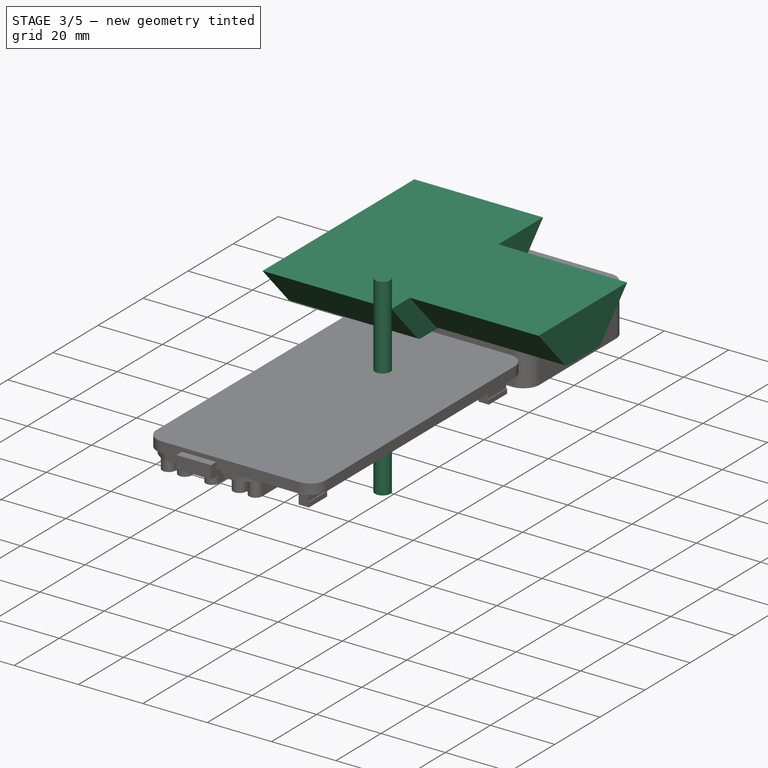
[diagram: stage 3 of 5 — iso view after this stage's code; geometry added in this stage tinted green]
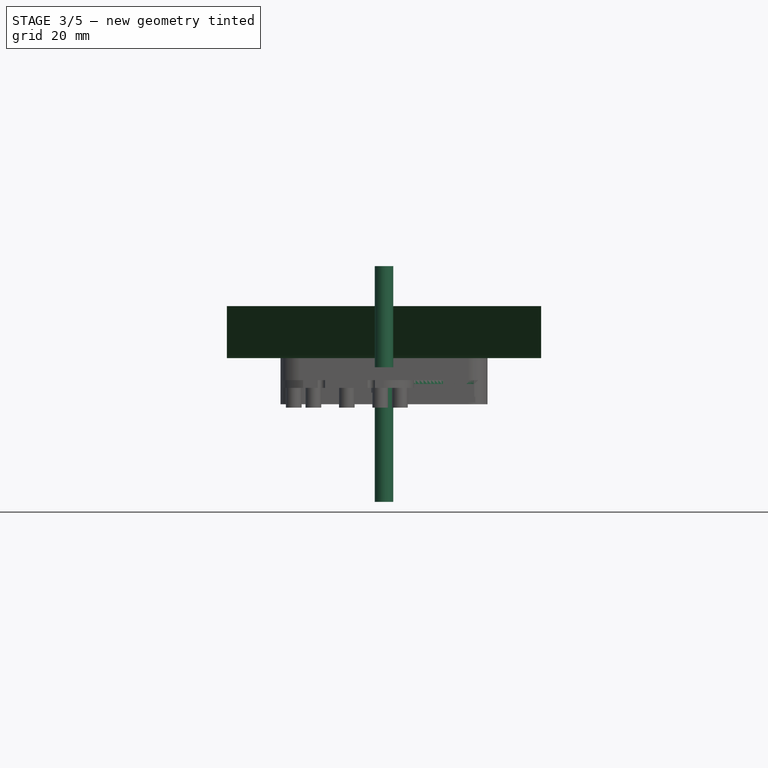
[diagram: stage 3 of 5 — front view after this stage's code; geometry added in this stage tinted green]
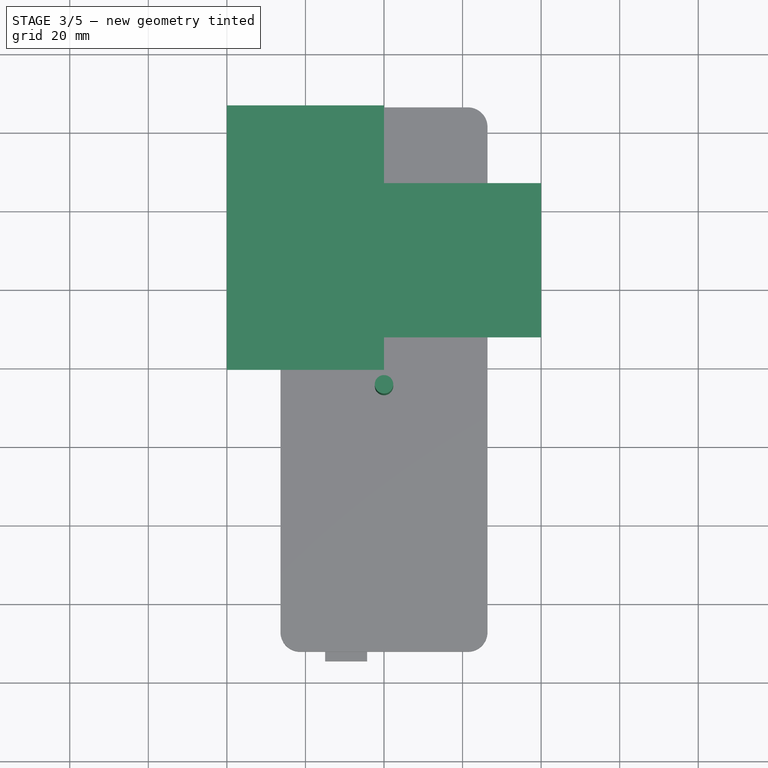
[diagram: stage 3 of 5 — top view after this stage's code; geometry added in this stage tinted green]
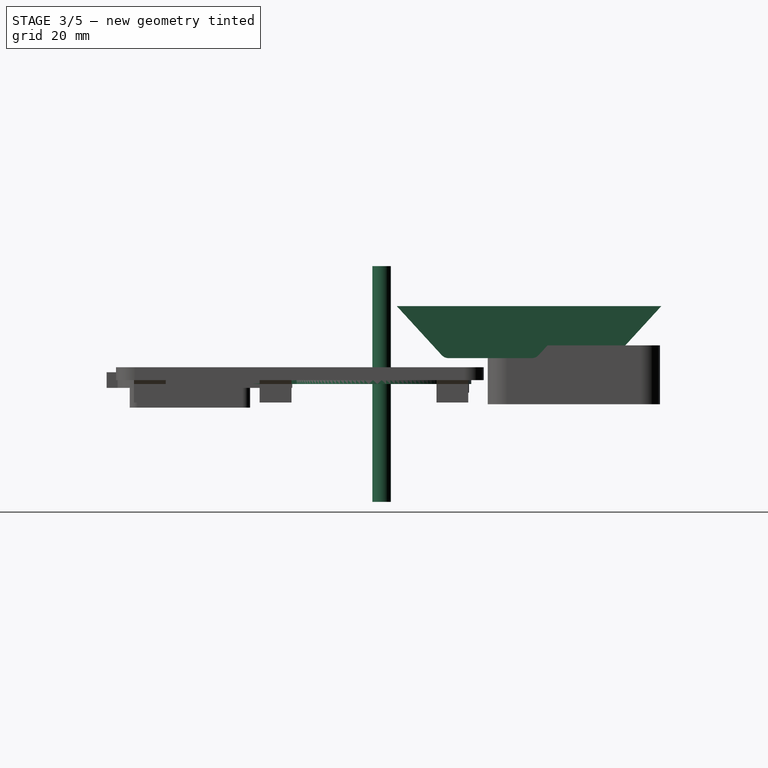
[diagram: stage 3 of 5 — right view after this stage's code; geometry added in this stage tinted green]
FEATURE [Image::ImagePlane] ImagePlane  label="PhoneBackSideImage"
  Placement = pos=(0,0,10) rot=(0,1,0;3.14159rad)
  XSize = 72.7973
  YSize = 152.697
  expr: YSize = 430 / 2.81604
  expr: XSize = 205 / 2.81604
FEATURE [Sketcher::SketchObject] Sketch008  label="switchpositions"
  MapMode = 5
  Support = -> [XY_Plane]
  sketch-geometry (12):
    g0: LineSegment StartX=36 StartY=12.34 StartZ=0 EndX=34 EndY=12.34 EndZ=0
    g1: LineSegment StartX=34 StartY=12.34 StartZ=0 EndX=34 EndY=25.2 EndZ=0
    g2: LineSegment StartX=34 StartY=25.2 StartZ=0 EndX=36 EndY=25.2 EndZ=0
    g3: LineSegment StartX=36 StartY=25.2 StartZ=0 EndX=36 EndY=12.34 EndZ=0
    g4: LineSegment StartX=36 StartY=32.3 StartZ=0 EndX=34 EndY=32.3 EndZ=0
    g5: LineSegment StartX=34 StartY=32.3 StartZ=0 EndX=34 EndY=53.7 EndZ=0
    g6: LineSegment StartX=34 StartY=53.7 StartZ=0 EndX=36 EndY=53.7 EndZ=0
    g7: LineSegment StartX=36 StartY=53.7 StartZ=0 EndX=36 EndY=32.3 EndZ=0
    g8: LineSegment StartX=-34 StartY=20.6 StartZ=0 EndX=-36 EndY=20.6 EndZ=0
    g9: LineSegment StartX=-36 StartY=20.6 StartZ=0 EndX=-36 EndY=32.9 EndZ=0
    g10: LineSegment StartX=-36 StartY=32.9 StartZ=0 EndX=-34 EndY=32.9 EndZ=0
    g11: LineSegment StartX=-34 StartY=32.9 StartZ=0 EndX=-34 EndY=20.6 EndZ=0
  constraints (36):
    c: Coincident(g0,g1)
    c: Coincident(g1,g2)
    c: Coincident(g2,g3)
    c: Coincident(g3,g0)
    c: Horizontal(g0)
    c: Horizontal(g2)
    c: Vertical(g1)
    c: Vertical(g3)
    c: Coincident(g4,g5)
    c: Coincident(g5,g6)
    c: Coincident(g6,g7)
    c: Coincident(g7,g4)
    c: Horizontal(g4)
    c: Horizontal(g6)
    c: Vertical(g5)
    c: Vertical(g7)
    c: Coincident(g8,g9)
    c: Coincident(g9,g10)
    c: Coincident(g10,g11)
    c: Coincident(g11,g8)
    c: Horizontal(g8)
    c: Horizontal(g10)
    c: Vertical(g9)
    c: Vertical(g11)
    c: DistanceX(g0) = 34
    c: DistanceY(g0) = 12.34
    c: DistanceX(g2) = 36
    c: DistanceY(g2) = 25.2
    c: Vertical(g2,g4)
    c: Vertical(g4,g1)
    c: DistanceY(g6,g-1) = -53.7
    c: DistanceY(g4,g-1) = -32.3
    c: DistanceX(g8) = -34
    c: DistanceY(g8) = 20.6
    c: DistanceX(g9) = -36
    c: DistanceY(g9) = 32.9
FEATURE [Sketcher::SketchObject] Sketch009  label="leftswitchescutout"
  ExternalGeometry = -> [Sketch008,Sketch002]
  MapMode = 5
  Placement = pos=(0,0,0) rot=(0.57735,0.57735,0.57735;2.0944rad)
  Support = -> [YZ_Plane]
  sketch-geometry (6):
    g0: LineSegment StartX=12.09 StartY=-3.25 StartZ=0 EndX=52.95 EndY=-3.25 EndZ=0
    g1: ArcOfCircle CenterX=12.09 CenterY=-0.75 CenterZ=0 NormalX=0 NormalY=0 NormalZ=1 AngleXU=0 Radius=2.5 StartAngle=3.88336 EndAngle=4.71239
    g2: ArcOfCircle CenterX=52.95 CenterY=-0.75 CenterZ=0 NormalX=0 NormalY=0 NormalZ=1 AngleXU=0 Radius=2.5 StartAngle=4.71239 EndAngle=5.54142
    g3: LineSegment StartX=10.2468 StartY=-2.43898 StartZ=0 EndX=-1.15141 EndY=10 EndZ=0
    g4: LineSegment StartX=54.7932 StartY=-2.43898 StartZ=0 EndX=66.1914 EndY=10 EndZ=0
    g5: LineSegment StartX=-1.15141 StartY=10 StartZ=0 EndX=66.1914 EndY=10 EndZ=0
  constraints (16):
    c: Horizontal(g0)
    c: DistanceY(g-5,g0) = 1
    c: Tangent(g1,g0) = -1.5708
    c: Tangent(g2,g0) = -1.5708
    c: Radius(g2) = 2.5
    c: Equal(g2,g1)
    c: Tangent(g4,g2) = -1.5708
    c: Tangent(g3,g1) = 1.5708
    c: Angle(g4,g0) = 2.31256
    c: Angle(g0,g3) = 2.31256
    c: Coincident(g5,g3)
    c: Coincident(g5,g4)
    c: Horizontal(g5)
    c: DistanceY(g-1,g4) = 10
    c: DistanceX(g0,g-3) = 0.25
    c: DistanceX(g-4,g0) = -0.75
FEATURE [Sketcher::SketchObject] Sketch012  label="rightwitchescutout"
  ExternalGeometry = -> [Sketch002,Sketch008]
  MapMode = 5
  Placement = pos=(0,0,0) rot=(0.57735,0.57735,0.57735;2.0944rad)
  Support = -> [YZ_Plane]
  sketch-geometry (6):
    g0: LineSegment StartX=20.35 StartY=-3.25 StartZ=0 EndX=33.15 EndY=-3.25 EndZ=0
    g1: ArcOfCircle CenterX=20.35 CenterY=-0.75 CenterZ=0 NormalX=0 NormalY=0 NormalZ=1 AngleXU=0 Radius=2.5 StartAngle=3.88336 EndAngle=4.71239
    g2: ArcOfCircle CenterX=33.15 CenterY=-0.75 CenterZ=0 NormalX=0 NormalY=0 NormalZ=1 AngleXU=0 Radius=2.5 StartAngle=4.71239 EndAngle=5.54142
    g3: LineSegment StartX=18.5068 StartY=-2.43898 StartZ=0 EndX=7.10859 EndY=10 EndZ=0
    g4: LineSegment StartX=34.9932 StartY=-2.43898 StartZ=0 EndX=46.3914 EndY=10 EndZ=0
    g5: LineSegment StartX=7.10859 StartY=10 StartZ=0 EndX=46.3914 EndY=10 EndZ=0
  constraints (16):
    c: Horizontal(g0)
    c: DistanceY(g-3,g0) = 1
    c: Tangent(g1,g0) = -1.5708
    c: Tangent(g2,g0) = -1.5708
    c: Radius(g2) = 2.5
    c: Equal(g2,g1)
    c: Tangent(g4,g2) = -1.5708
    c: Tangent(g3,g1) = 1.5708
    c: Angle(g4,g0) = 2.31256
    c: Angle(g0,g3) = 2.31256
    c: Coincident(g5,g3)
    c: Coincident(g5,g4)
    c: Horizontal(g5)
    c: DistanceY(g-1,g4) = 10
    c: DistanceX(g-4,g0) = 0.25
    c: DistanceX(g0,g-4) = 0.25
FEATURE [Part::Extrusion] Extrude003  label="leftswitschextrude"
  Base = -> Sketch009
  Dir = (1,-2e-16,3e-16)
  DirMode = 2
  FaceMakerClass = Part::FaceMakerBullseye
  LengthFwd = 0
  LengthRev = 40
  Solid = true
  Symmetric = false
FEATURE [Part::Extrusion] Extrude004  label="rightswitchextrude"
  Base = -> Sketch012
  Dir = (1,-2e-16,3e-16)
  DirMode = 2
  FaceMakerClass = Part::FaceMakerBullseye
  LengthFwd = 40
  LengthRev = 0
  Solid = true
  Symmetric = false
FEATURE [Image::ImagePlane] ImagePlane001  label="coil_reverse"
  Placement = pos=(0,0,0) rot=(-1,0,0;3.14159rad)
  XSize = 46
  YSize = 46
FEATURE [Image::ImagePlane] ImagePlane002
  Placement = pos=(2.6e-15,11.5,1) rot=(-0.707107,0.707107,0;3.14159rad)
  XSize = 64.98
  YSize = 34.656
  expr: YSize = 32 * 1.083
  expr: XSize = 60 * 1.083
FEATURE [Sketcher::SketchObject] Sketch018  label="holderbevelsketch"
  ExternalGeometry = -> [Sketch006]
  MapMode = 5
  Placement = pos=(0,0,0) rot=(1,0,0;1.5708rad)
  Support = -> [XZ_Plane]
  expr: Constraints[18] = p.csbz
  expr: Constraints[15] = p.dpscs
  expr: Constraints[0] = p.dpscs
  expr: Constraints[13] = p.csth
  sketch-geometry (11):
    g0: LineSegment StartX=34.9165 StartY=4.76231 StartZ=0 EndX=35.5013 EndY=1.81721 EndZ=0
    g1: ArcOfCircle CenterX=34.225 CenterY=4.625 CenterZ=0 NormalX=0 NormalY=0 NormalZ=1 AngleXU=0 Radius=0.705 StartAngle=0.196024 EndAngle=0.514938
    g2: ArcOfCircle CenterX=35.3825 CenterY=5.28 CenterZ=0 NormalX=0 NormalY=0 NormalZ=1 AngleXU=0 Radius=0.625 StartAngle=0.514938 EndAngle=3.65653
    g3: ArcOfCircle CenterX=34.225 CenterY=4.625 CenterZ=0 NormalX=0 NormalY=0 NormalZ=1 AngleXU=0 Radius=1.955 StartAngle=0.386076 EndAngle=0.514938
    g4: LineSegment StartX=36.0361 StartY=5.36117 StartZ=0 EndX=36.5328 EndY=4.13908 EndZ=0
    g5: ArcOfCircle CenterX=26.35 CenterY=0 CenterZ=0 NormalX=0 NormalY=0 NormalZ=1 AngleXU=0 Radius=9.33 StartAngle=5.72311 EndAngle=6.47921
    g6: ArcOfCircle CenterX=26.35 CenterY=0 CenterZ=0 NormalX=0 NormalY=0 NormalZ=1 AngleXU=0 Radius=10.9919 StartAngle=5.98493 EndAngle=6.66926
    g7: ArcOfCircle CenterX=33.1277 CenterY=-4.25 CenterZ=0 NormalX=0 NormalY=0 NormalZ=1 AngleXU=0 Radius=1.33 StartAngle=4.71239 EndAngle=5.72311
    g8: ArcOfCircle CenterX=33.1277 CenterY=-14.1848 CenterZ=0 NormalX=0 NormalY=0 NormalZ=1 AngleXU=0 Radius=0.345199 StartAngle=4.71239 EndAngle=5.98493
    g9: LineSegment StartX=33.4577 StartY=-14.2862 StartZ=0 EndX=36.8566 EndY=-3.23 EndZ=0
    g10: LineSegment StartX=33.1277 StartY=-5.58 StartZ=0 EndX=33.1277 EndY=-14.53 EndZ=0
  constraints (26):
    c: Distance(g-3,g0) = 0.08
    c: Coincident(g1,g-6)
    c: Tangent(g2,g1) = 1.5708
    c: Tangent(g3,g2) = -1.5708
    c: Coincident(g3,g1)
    c: Coincident(g5,g-4)
    c: Coincident(g6,g5)
    c: Tangent(g5,g0) = 1.5708
    c: Tangent(g4,g3) = 1.5708
    c: Tangent(g6,g4) = 1.5708
    c: Coincident(g7,g-5)
    c: Tangent(g7,g5) = -1.5708
    c: Vertical(g7,g-5)
    c: Distance(g1,g2) = 1.25
    c: Tangent(g1,g0) = 1.5708
    c: DistanceY(g7,g-5) = 0.08
    c: Vertical(g8,g8)
    c: Vertical(g8,g7)
    c: DistanceY(g8,g7) = 8.95
    c: Tangent(g8,g9) = -1.5708
    c: Tangent(g9,g6) = -1.5708
    c: Coincident(g10,g7)
    c: Coincident(g10,g8)
    c: DistanceX(g6) = 36.8566
    c: DistanceY(g6) = -3.23
    c: DistanceY(g-1,g2) = 5.28
FEATURE [Image::ImagePlane] ImagePlane004  label="coil_normal"
  Placement = pos=(0,0,0) rot=(0,0,1;-1.39626rad)
  XSize = 46
  YSize = 46
FEATURE [Part::Cylinder] Cylinder  label="CoilFerrite"
  Angle = 360
  AttacherType = Attacher::AttachEngine3D
  Height = 1
  Radius = 22.8
  expr: Radius = 45.6 / 2
FEATURE [Part::Cylinder] Cylinder001  label="CoilWireInner"
  Angle = 360
  AttacherType = Attacher::AttachEngine3D
  Height = 2.1
  Placement = pos=(0,0,1) rot=(0,0,1;0rad)
  Radius = 9
FEATURE [Part::Cylinder] Cylinder002  label="Coilwireouter"
  Angle = 360
  AttacherType = Attacher::AttachEngine3D
  Height = 2.1
  Radius = 19.5
  expr: Radius = 39 / 2
FEATURE [Part::Cylinder] Cylinder003  label="Coilferritehole"
  Angle = 360
  AttacherType = Attacher::AttachEngine3D
  Height = 2
  Radius = 2.55
  expr: Radius = 5.1 / 2
FEATURE [Part::Box] Box  label="Coilwirekeepout"
  AttacherType = Attacher::AttachEngine3D
  Height = 3
  Length = 14
  Placement = pos=(-7,-33,0) rot=(0,0,1;0rad)
  Width = 25
FEATURE [Part::MultiFuse] Fusion002
  Shapes = -> [Cylinder,Cylinder002,Box]
FEATURE [Part::MultiFuse] Fusion003
  Shapes = -> [Cylinder001,Cylinder003]
FEATURE [Part::Cut] Cut003
  Base = -> Fusion002
  Tool = -> Fusion003
FEATURE [Part::MultiFuse] Fusion004  label="CoilKeepOut"
  Placement = pos=(0,-5,-9.83) rot=(0,0,1;0rad)
  Shapes = -> [Cut003,Cylinder004]
  expr: Placement.Base.z = p002.fpbz
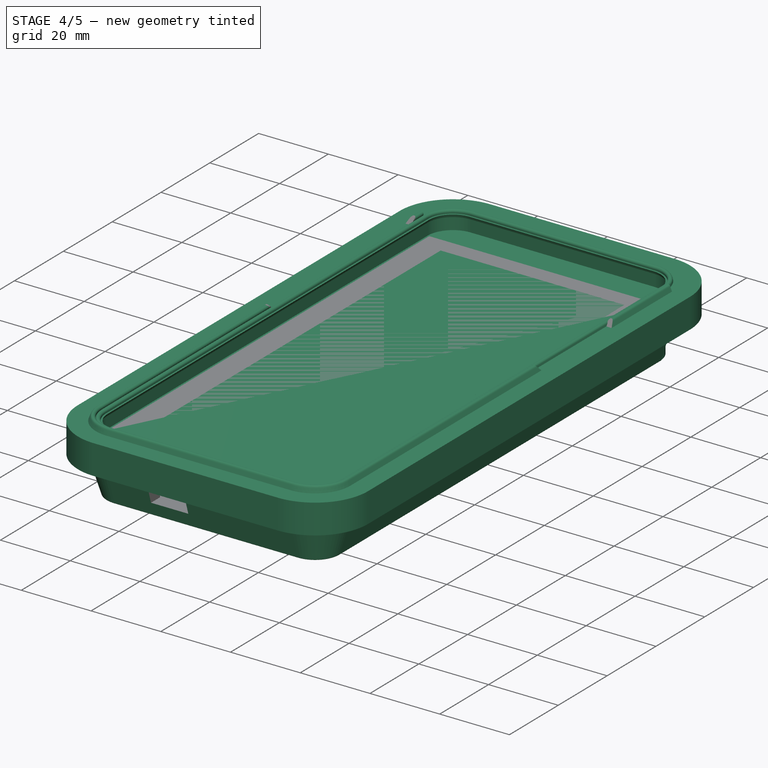
[diagram: stage 4 of 5 — iso view after this stage's code; geometry added in this stage tinted green]
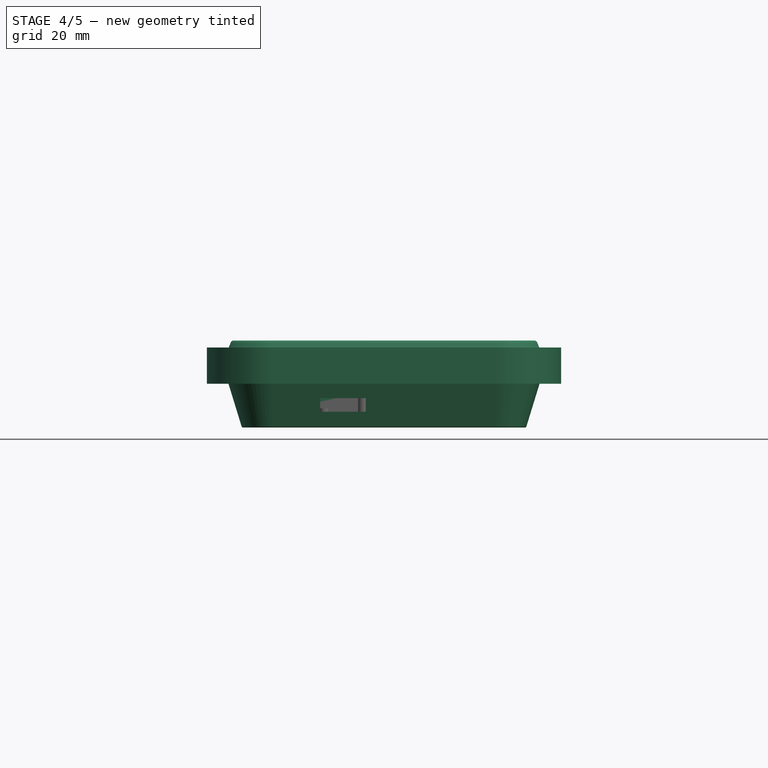
[diagram: stage 4 of 5 — front view after this stage's code; geometry added in this stage tinted green]
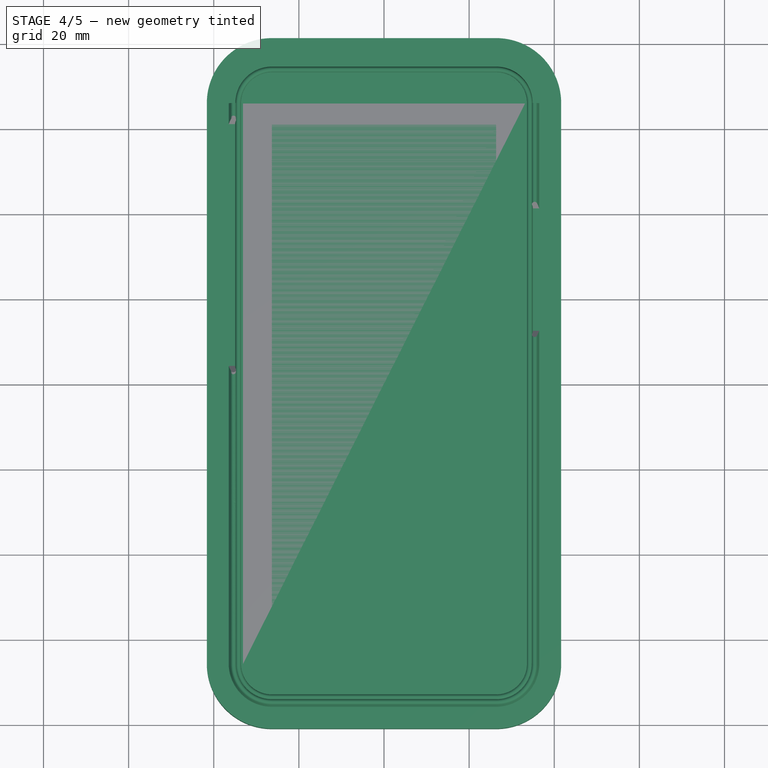
[diagram: stage 4 of 5 — top view after this stage's code; geometry added in this stage tinted green]
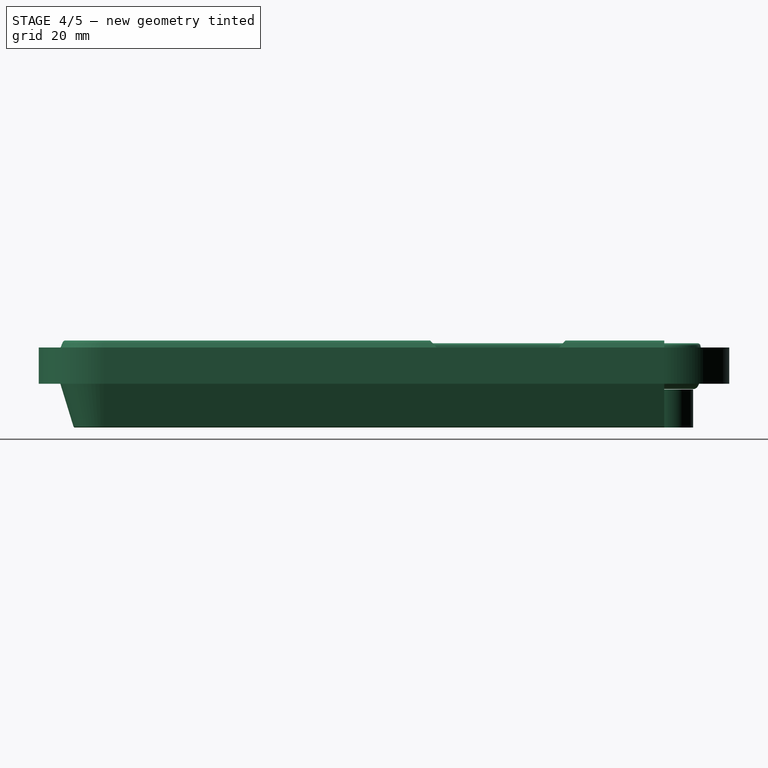
[diagram: stage 4 of 5 — right view after this stage's code; geometry added in this stage tinted green]
FEATURE [PartDesign::AdditivePipe] AdditivePipe
  AuxilleryCurvelinear = true
  AuxillerySpineTangent = false
  Binormal = (0,0,0)
  Mode = 0
  Placement = pos=(0,0,0) rot=(1,0,0;1.5708rad)
  Profile = -> Sketch005
  Spine = -> Sketch
  SpineTangent = false
  Transformation = 0
  Transition = 0
FEATURE [Sketcher::SketchObject] Sketch015  label="bevelsweepfillsketch"
  ExternalGeometry = -> [Sketch006,Sketch]
  MapMode = 5
  Support = -> [XY_Plane]
  sketch-geometry (8):
    g0: LineSegment StartX=33.1277 StartY=65.85 StartZ=0 EndX=33.1277 EndY=-65.85 EndZ=0
    g1: ArcOfCircle CenterX=26.35 CenterY=65.85 CenterZ=0 NormalX=0 NormalY=0 NormalZ=1 AngleXU=0 Radius=6.77772 StartAngle=-4.35e-14 EndAngle=1.5708
    g2: ArcOfCircle CenterX=-26.35 CenterY=65.85 CenterZ=0 NormalX=0 NormalY=0 NormalZ=1 AngleXU=0 Radius=6.77772 StartAngle=1.5708 EndAngle=3.14159
    g3: ArcOfCircle CenterX=-26.35 CenterY=-65.85 CenterZ=0 NormalX=0 NormalY=0 NormalZ=1 AngleXU=0 Radius=6.77772 StartAngle=3.14159 EndAngle=4.71239
    g4: ArcOfCircle CenterX=26.35 CenterY=-65.85 CenterZ=0 NormalX=0 NormalY=0 NormalZ=1 AngleXU=0 Radius=6.77772 StartAngle=4.71238 EndAngle=6.28319
    g5: LineSegment StartX=-33.1277 StartY=65.85 StartZ=0 EndX=-33.1277 EndY=-65.85 EndZ=0
    g6: LineSegment StartX=-26.35 StartY=-72.6277 StartZ=0 EndX=26.35 EndY=-72.6277 EndZ=0
    g7: LineSegment StartX=-26.35 StartY=72.6277 StartZ=0 EndX=26.35 EndY=72.6277 EndZ=0
  constraints (22):
    c: Vertical(g0)
    c: PointOnObject(g-3,g0)
    c: Horizontal(g0,g-4)
    c: Coincident(g1,g-4)
    c: Coincident(g1,g0)
    c: Vertical(g1,g-4)
    c: Symmetric(g2,g1,g-2)
    c: Equal(g1,g2)
    c: Equal(g3,g4)
    c: Equal(g4,g1)
    c: Symmetric(g1,g4,g-1)
    c: Symmetric(g3,g2,g-1)
    c: Coincident(g5,g3)
    c: Vertical(g5)
    c: Coincident(g6,g4)
    c: Horizontal(g6)
    c: Coincident(g0,g4)
    c: Coincident(g7,g2)
    c: Coincident(g7,g1)
    c: Horizontal(g7)
    c: Tangent(g6,g3) = -1.5708
    c: Tangent(g5,g2) = -1.5708
FEATURE [Part::Sweep] Sweep002
  Frenet = false
  Sections = -> [Sketch006]
  Solid = true
  Spine = -> Sketch015
  Transition = 1
FEATURE [Part::Extrusion] Extrude007
  Base = -> Sketch015
  Dir = (0,0,1)
  DirMode = 2
  FaceMakerClass = Part::FaceMakerBullseye
  LengthFwd = 0
  LengthRev = 5.5
  Solid = true
  Symmetric = false
  expr: LengthRev = p001.ptz / 2 + p001.sth
FEATURE [Sketcher::SketchObject] Sketch016  label="bottomcutout"
  ExternalGeometry = -> [Sketch]
  MapMode = 5
  Support = -> [XY_Plane]
  sketch-geometry (8):
    g0: LineSegment StartX=26.35 StartY=60.85 StartZ=0 EndX=26.35 EndY=-60.85 EndZ=0
    g1: ArcOfCircle CenterX=21.35 CenterY=60.85 CenterZ=0 NormalX=0 NormalY=0 NormalZ=1 AngleXU=0 Radius=5 StartAngle=0 EndAngle=1.5708
    g2: ArcOfCircle CenterX=-21.35 CenterY=60.85 CenterZ=0 NormalX=0 NormalY=0 NormalZ=1 AngleXU=0 Radius=5 StartAngle=1.5708 EndAngle=3.14159
    g3: ArcOfCircle CenterX=-21.35 CenterY=-60.85 CenterZ=0 NormalX=0 NormalY=0 NormalZ=1 AngleXU=0 Radius=5 StartAngle=3.14159 EndAngle=4.71239
    g4: ArcOfCircle CenterX=21.35 CenterY=-60.85 CenterZ=0 NormalX=0 NormalY=0 NormalZ=1 AngleXU=0 Radius=5 StartAngle=4.71239 EndAngle=6.28319
    g5: LineSegment StartX=21.35 StartY=65.85 StartZ=0 EndX=-21.35 EndY=65.85 EndZ=0
    g6: LineSegment StartX=21.35 StartY=-65.85 StartZ=0 EndX=-21.35 EndY=-65.85 EndZ=0
    g7: LineSegment StartX=-26.35 StartY=60.85 StartZ=0 EndX=-26.35 EndY=-60.85 EndZ=0
  constraints (24):
    c: Vertical(g0)
    c: Coincident(g0,g1)
    c: Horizontal(g1,g0)
    c: Vertical(g1,g1)
    c: Coincident(g5,g1)
    c: Coincident(g5,g2)
    c: Horizontal(g5)
    c: Equal(g2,g1)
    c: Equal(g4,g3)
    c: Coincident(g0,g4)
    c: Coincident(g6,g4)
    c: Coincident(g6,g3)
    c: Horizontal(g6)
    c: Horizontal(g4,g0)
    c: Vertical(g4,g4)
    c: Symmetric(g1,g2,g-2)
    c: Symmetric(g4,g1,g-1)
    c: Symmetric(g3,g2,g-1)
    c: Coincident(g7,g3)
    c: Vertical(g7)
    c: DistanceX(g0,g-3) = 8
    c: Tangent(g7,g2) = -1.5708
    c: DistanceY(g1,g-3) = 8
    c: Radius(g2) = 5
FEATURE [Part::Extrusion] Extrude008  label="BottomCutOutExtrude"
  Base = -> Sketch016
  Dir = (0,0,1)
  DirMode = 2
  FaceMakerClass = Part::FaceMakerBullseye
  LengthFwd = 0
  LengthRev = 10
  Solid = true
  Symmetric = false
FEATURE [Part::Sweep] Sweep
  Frenet = false
  Sections = -> [Sketch018]
  Solid = false
  Spine = -> Sketch015
  Transition = 1
FEATURE [Sketcher::SketchObject] Sketch019  label="charger_pcb"
  MapMode = 5
  Support = -> [XY_Plane]
  sketch-geometry (22):
    g0: LineSegment StartX=16.65 StartY=-9.25 StartZ=0 EndX=16.65 EndY=17.25 EndZ=0
    g1: LineSegment [constr] StartX=16.65 StartY=17.25 StartZ=0 EndX=-16.65 EndY=17.25 EndZ=0
    g2: LineSegment StartX=-16.65 StartY=17.25 StartZ=0 EndX=-16.65 EndY=-13.15 EndZ=0
    g3: ArcOfCircle CenterX=8.65 CenterY=-9.25 CenterZ=0 NormalX=0 NormalY=0 NormalZ=1 AngleXU=0 Radius=8 StartAngle=4.71239 EndAngle=6.28319
    g4: LineSegment StartX=4.7 StartY=-15.7 StartZ=0 EndX=4.7 EndY=-20 EndZ=0
    g5: LineSegment StartX=4.7 StartY=-20 StartZ=0 EndX=-6 EndY=-20 EndZ=0
    g6: LineSegment StartX=-6 StartY=-20 StartZ=0 EndX=-6 EndY=-15.7 EndZ=0
    g7: ArcOfCircle CenterX=-9.5181 CenterY=-9.52564 CenterZ=0 NormalX=0 NormalY=0 NormalZ=1 AngleXU=0 Radius=8 StartAngle=3.61177 EndAngle=4.44912
    g8: LineSegment StartX=8.65 StartY=-17.25 StartZ=0 EndX=6.7 EndY=-17.25 EndZ=0
    g9: LineSegment StartX=6.7 StartY=-17.25 StartZ=0 EndX=6.7 EndY=-15.7 EndZ=0
    g10: LineSegment StartX=-11.6 StartY=-17.25 StartZ=0 EndX=-8 EndY=-17.25 EndZ=0
    g11: LineSegment StartX=-8 StartY=-15.7 StartZ=0 EndX=-8 EndY=-17.25 EndZ=0
    g12: ArcOfCircle CenterX=-7 CenterY=-15.7 CenterZ=0 NormalX=0 NormalY=0 NormalZ=1 AngleXU=0 Radius=1 StartAngle=0 EndAngle=3.14159
    g13: ArcOfCircle CenterX=5.7 CenterY=-15.7 CenterZ=0 NormalX=0 NormalY=0 NormalZ=1 AngleXU=0 Radius=1 StartAngle=3e-16 EndAngle=3.14159
    g14: GeomPoint X=16.65 Y=-17.25 Z=0
    g15: Circle CenterX=3.9941 CenterY=-11.3746 CenterZ=0 NormalX=0 NormalY=0 NormalZ=1 AngleXU=0 Radius=1.1
    g16: Circle CenterX=-5.0638 CenterY=-4.28584 CenterZ=0 NormalX=0 NormalY=0 NormalZ=1 AngleXU=0 Radius=1.1
    g17: LineSegment StartX=-16.65 StartY=17.25 StartZ=0 EndX=-5 EndY=17.25 EndZ=0
    g18: LineSegment StartX=16.65 StartY=17.25 StartZ=0 EndX=5 EndY=17.25 EndZ=0
    g19: LineSegment StartX=-5 StartY=17.25 StartZ=0 EndX=-5 EndY=27.25 EndZ=0
    g20: LineSegment StartX=-5 StartY=27.25 StartZ=0 EndX=5 EndY=27.25 EndZ=0
    g21: LineSegment StartX=5 StartY=27.25 StartZ=0 EndX=5 EndY=17.25 EndZ=0
  constraints (63):
    c: Vertical(g0)
    c: Coincident(g0,g1)
    c: Coincident(g1,g2)
    c: Vertical(g2)
    c: Vertical(g4)
    c: Coincident(g4,g5)
    c: Coincident(g5,g6)
    c: Vertical(g6)
    c: Horizontal(g3,g7)
    c: DistanceX(g1,g1) = 33.3
    c: DistanceY(g3,g0) = 34.5
    c: Symmetric(g0,g1,g-2)
    c: Tangent(g3,g0) = -1.5708
    c: Equal(g4,g6)
    c: Radius(g3) = 8
    c: Horizontal(g8)
    c: Vertical(g9)
    c: Coincident(g9,g8)
    c: Coincident(g10,g7)
    c: Horizontal(g10)
    c: Coincident(g11,g10)
    c: Vertical(g11)
    c: Coincident(g12,g11)
    c: Coincident(g12,g6)
    c: Coincident(g13,g4)
    c: Coincident(g13,g9)
    c: Equal(g12,g13)
    c: Horizontal(g9,g13)
    c: Horizontal(g13,g4)
    c: Horizontal(g6,g12)
    c: Horizontal(g12,g11)
    c: DistanceX(g11,g6) = 2
    c: DistanceX(g12,g-1) = 7
    c: DistanceX(g-1,g13) = 5.7
    c: Coincident(g2,g7)
    c: Horizontal(g5)
    c: DistanceY(g6,g6) = 4.3
    c: DistanceY(g4,g3) = 2.75
    c: Tangent(g8,g3) = 1.5708
    c: Equal(g7,g3)
    c: DistanceY(g7,g2) = 4.1
    c: DistanceX(g10,g10) = 3.6
    c: Symmetric(g14,g0,g-1)
    c: Horizontal(g14,g3)
    c: Radius(g16) = 1.1
    c: Equal(g16,g15)
    c: DistanceX(g16) = -5.0638
    c: DistanceY(g16) = -4.28584
    c: DistanceX(g15) = 3.9941
    c: DistanceY(g15) = -11.3746
    c: Coincident(g17,g2)
    c: Horizontal(g17)
    c: Coincident(g18,g0)
    c: Symmetric(g17,g18,g-2)
    c: DistanceX(g17,g18) = 10
    c: Coincident(g17,g19)
    c: Vertical(g19)
    c: Coincident(g19,g20)
    c: Horizontal(g20)
    c: Coincident(g20,g21)
    c: Coincident(g21,g18)
    c: Vertical(g21)
    c: DistanceY(g18,g20) = 10
FEATURE [Sketcher::SketchObject] Sketch020  label="holderbevelsweepsketch"
  ExternalGeometry = -> [Sketch006,Sketch]
  MapMode = 5
  Support = -> [XY_Plane]
  sketch-geometry (10):
    g0: LineSegment [constr] StartX=33.1277 StartY=65.85 StartZ=0 EndX=33.1277 EndY=-65.85 EndZ=0
    g1: ArcOfCircle [constr] CenterX=26.35 CenterY=65.85 CenterZ=0 NormalX=0 NormalY=0 NormalZ=1 AngleXU=0 Radius=6.77772 StartAngle=-4.44e-14 EndAngle=1.5708
    g2: ArcOfCircle [constr] CenterX=-26.35 CenterY=65.85 CenterZ=0 NormalX=0 NormalY=0 NormalZ=1 AngleXU=0 Radius=6.77772 StartAngle=1.5708 EndAngle=3.14159
    g3: ArcOfCircle CenterX=-26.35 CenterY=-65.85 CenterZ=0 NormalX=0 NormalY=0 NormalZ=1 AngleXU=0 Radius=6.77772 StartAngle=3.14159 EndAngle=4.71239
    g4: ArcOfCircle CenterX=26.35 CenterY=-65.85 CenterZ=0 NormalX=0 NormalY=0 NormalZ=1 AngleXU=0 Radius=6.77772 StartAngle=4.71239 EndAngle=6.28319
    g5: LineSegment [constr] StartX=-33.1277 StartY=65.85 StartZ=0 EndX=-33.1277 EndY=-65.85 EndZ=0
    g6: LineSegment StartX=-26.35 StartY=-72.6277 StartZ=0 EndX=26.35 EndY=-72.6277 EndZ=0
    g7: LineSegment [constr] StartX=-26.35 StartY=72.6277 StartZ=0 EndX=26.35 EndY=72.6277 EndZ=0
    g8: LineSegment StartX=33.1277 StartY=-65.85 StartZ=0 EndX=33.1277 EndY=65.85 EndZ=0
    g9: LineSegment StartX=-33.1277 StartY=-65.85 StartZ=0 EndX=-33.1277 EndY=65.85 EndZ=0
  constraints (28):
    c: Vertical(g0)
    c: PointOnObject(g-3,g0)
    c: Horizontal(g0,g-4)
    c: Coincident(g1,g-4)
    c: Coincident(g1,g0)
    c: Vertical(g1,g-4)
    c: Symmetric(g2,g1,g-2)
    c: Equal(g1,g2)
    c: Equal(g3,g4)
    c: Equal(g4,g1)
    c: Symmetric(g1,g4,g-1)
    c: Symmetric(g3,g2,g-1)
    c: Coincident(g5,g3)
    c: Vertical(g5)
    c: Coincident(g6,g4)
    c: Horizontal(g6)
    c: Coincident(g0,g4)
    c: Coincident(g7,g2)
    c: Coincident(g7,g1)
    c: Horizontal(g7)
    c: Tangent(g6,g3) = -1.5708
    c: Tangent(g5,g2) = -1.5708
    c: Vertical(g9)
    c: Coincident(g9,g3)
    c: Vertical(g8)
    c: Coincident(g8,g4)
    c: Horizontal(g9,g8)
    c: Horizontal(g8,g0)
FEATURE [Part::Sweep] Sweep003
  Frenet = false
  Sections = -> [Sketch018]
  Solid = true
  Spine = -> Sketch020
  Transition = 1
FEATURE [Part::Extrusion] Extrude009
  Base = -> Sketch015
  Dir = (0,0,1)
  DirMode = 2
  FaceMakerClass = Part::FaceMakerBullseye
  LengthFwd = 0
  LengthRev = 8.95
  Placement = pos=(0,0,-5.58) rot=(0,0,1;0rad)
  Solid = true
  Symmetric = false
  expr: LengthRev = p002.csbz
  expr: Placement.Base.z = p002.csts
FEATURE [Part::MultiFuse] Fusion005
  Shapes = -> [Sweep003,Extrude009]
FEATURE [Part::MultiFuse] Fusion006
  Shapes = -> [Extrude004,Extrude003,Fusion004,Extrude010,Extrude011,Fusion007,Body001,Extrude013,Fusion010]
FEATURE [Part::Cut] Cut004
  Base = -> Fusion005
  Tool = -> Fusion006
FEATURE [Part::Cut] Cut005  label="ChargerBase"
  Base = -> Cut004
  Tool = -> Extrude012
FEATURE [Part::Cut] Cut006  label="MoldedInnardsCover"
  Base = -> Extrude012
  Tool = -> Fusion006
FEATURE [Part::MultiFuse] Fusion009  label="ChargerCover"
  Shapes = -> [Cut006,Fusion008]
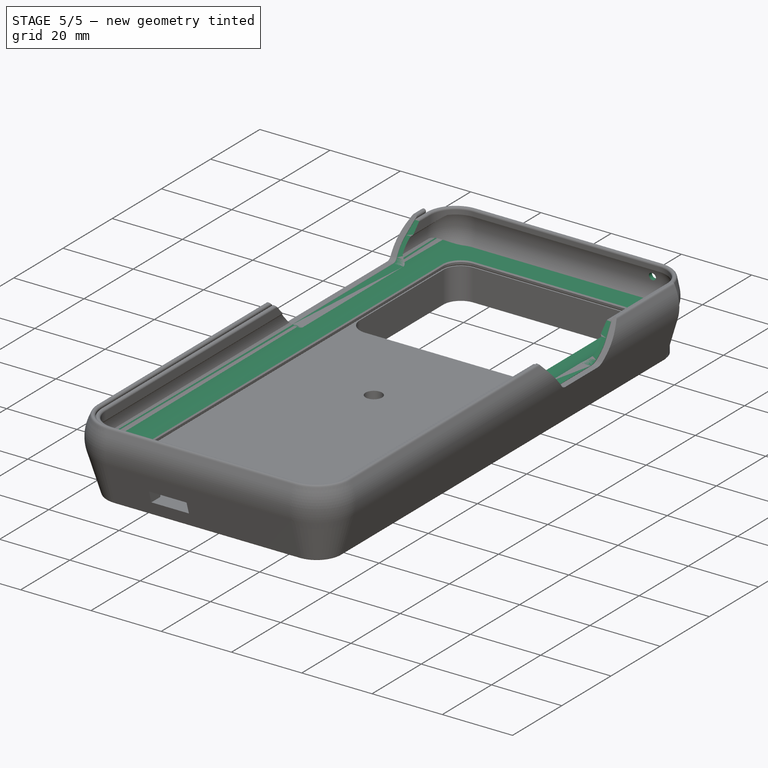
[diagram: stage 5 of 5 — iso view after this stage's code; geometry added in this stage tinted green]
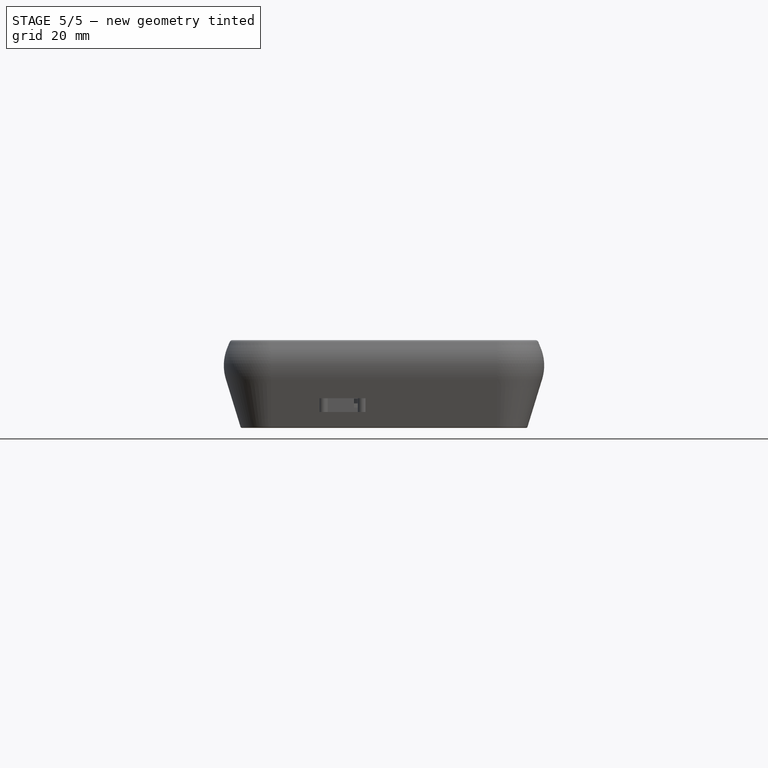
[diagram: stage 5 of 5 — front view after this stage's code; geometry added in this stage tinted green]
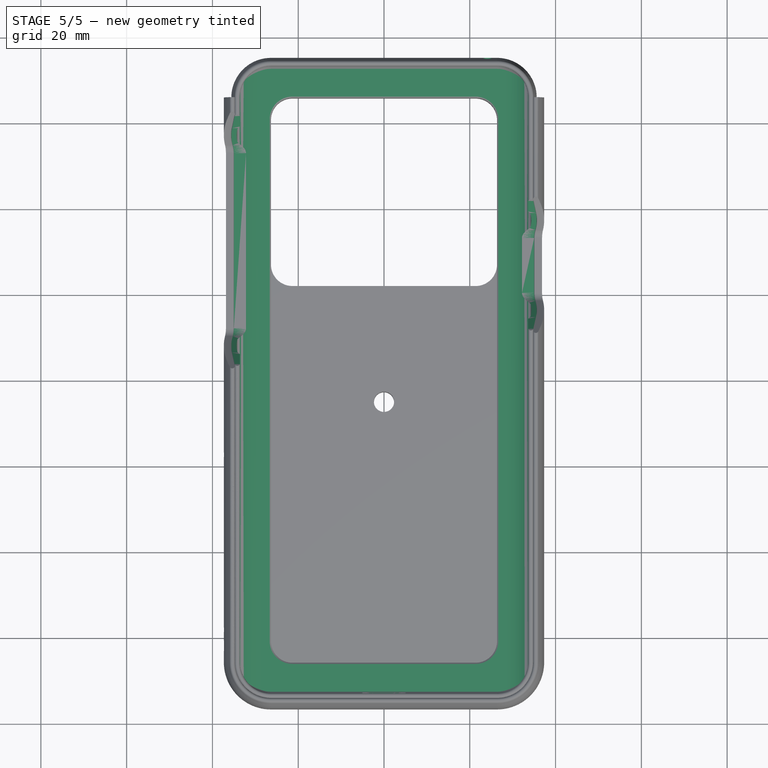
[diagram: stage 5 of 5 — top view after this stage's code; geometry added in this stage tinted green]
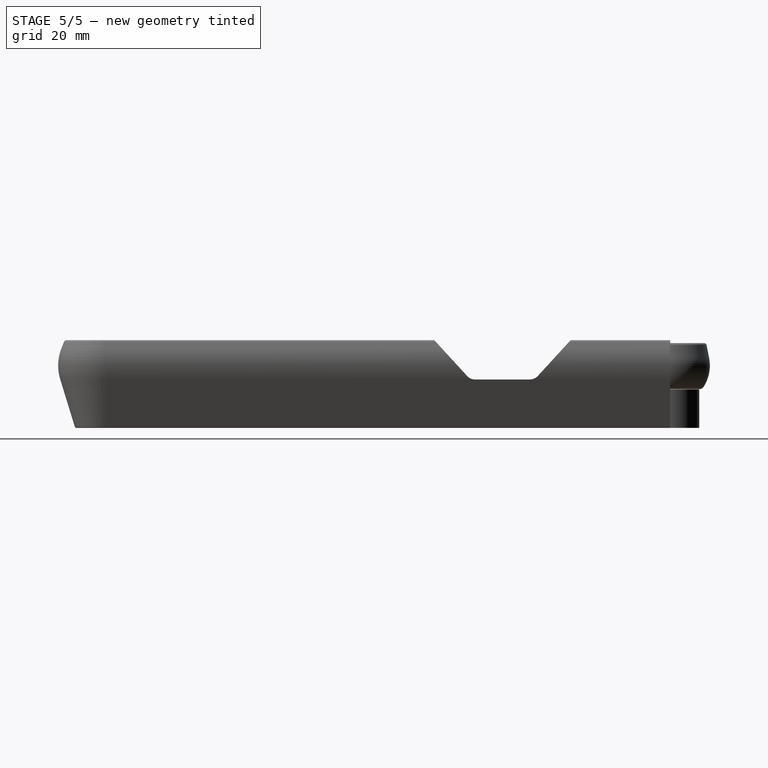
[diagram: stage 5 of 5 — right view after this stage's code; geometry added in this stage tinted green]
FEATURE [Sketcher::SketchObject] Sketch  label="topsketch"
  MapMode = 5
  Support = -> [XY_Plane]
  expr: Constraints[34] = p.pbtr
  expr: Constraints[33] = p.pty
  expr: Constraints[32] = p.ptx
  sketch-geometry (12):
    g0: ArcOfCircle CenterX=-26.35 CenterY=65.85 CenterZ=0 NormalX=0 NormalY=0 NormalZ=1 AngleXU=0 Radius=8 StartAngle=1.5708 EndAngle=3.14159
    g1: ArcOfCircle CenterX=26.35 CenterY=65.85 CenterZ=0 NormalX=0 NormalY=0 NormalZ=1 AngleXU=0 Radius=8 StartAngle=-3.64e-14 EndAngle=1.5708
    g2: ArcOfCircle CenterX=26.35 CenterY=-65.85 CenterZ=0 NormalX=0 NormalY=0 NormalZ=1 AngleXU=0 Radius=8 StartAngle=4.71239 EndAngle=6.28319
    g3: ArcOfCircle CenterX=-26.35 CenterY=-65.85 CenterZ=0 NormalX=0 NormalY=0 NormalZ=1 AngleXU=0 Radius=8 StartAngle=3.14159 EndAngle=4.71239
    g4: LineSegment StartX=-34.35 StartY=65.85 StartZ=0 EndX=-34.35 EndY=-65.85 EndZ=0
    g5: LineSegment StartX=-26.35 StartY=-73.85 StartZ=0 EndX=26.35 EndY=-73.85 EndZ=0
    g6: LineSegment StartX=34.35 StartY=-65.85 StartZ=0 EndX=34.35 EndY=65.85 EndZ=0
    g7: LineSegment StartX=26.35 StartY=73.85 StartZ=0 EndX=-26.35 EndY=73.85 EndZ=0
    g8: LineSegment [constr] StartX=-26.35 StartY=73.85 StartZ=0 EndX=-26.35 EndY=-73.85 EndZ=0
    g9: LineSegment [constr] StartX=26.35 StartY=73.85 StartZ=0 EndX=26.35 EndY=-73.85 EndZ=0
    g10: LineSegment [constr] StartX=34.35 StartY=-65.85 StartZ=0 EndX=-34.35 EndY=-65.85 EndZ=0
    g11: LineSegment [constr] StartX=34.35 StartY=65.85 StartZ=0 EndX=-34.35 EndY=65.85 EndZ=0
  constraints (35):
    c: Coincident(g4,g0)
    c: Coincident(g4,g3)
    c: Coincident(g5,g3)
    c: Coincident(g5,g2)
    c: Coincident(g6,g2)
    c: Coincident(g6,g1)
    c: Coincident(g7,g0)
    c: Coincident(g7,g1)
    c: Vertical(g4)
    c: Vertical(g6)
    c: Horizontal(g7)
    c: Horizontal(g5)
    c: Coincident(g8,g0)
    c: Coincident(g8,g3)
    c: Vertical(g8)
    c: Coincident(g9,g1)
    c: Coincident(g9,g2)
    c: Vertical(g9)
    c: Coincident(g10,g2)
    c: Coincident(g10,g3)
    c: Horizontal(g10)
    c: Coincident(g11,g1)
    c: Coincident(g11,g0)
    c: PointOnObject(g0,g8)
    c: PointOnObject(g3,g8)
    c: PointOnObject(g0,g11)
    c: PointOnObject(g3,g10)
    c: PointOnObject(g1,g9)
    c: PointOnObject(g1,g11)
    c: PointOnObject(g2,g10)
    c: PointOnObject(g2,g9)
    c: Symmetric(g0,g2,g-1)
    c: DistanceX(g0,g1) = 68.7
    c: DistanceY(g2,g1) = 147.7
    c: DistanceY(g0,g0) = 8
FEATURE [Spreadsheet::Sheet] Spreadsheet  label="p"
  cells = B7=Tolerance Shell; C7=tsh; D7(tsh)=0.3; E7=Tolerance added to the Outside of the Phone; B8=Phone Total x; C8=ptx; D8(ptx)=68.7; E8=totall length of phoe (y-dimension); B9=Phone Total y; C9=pty; D9(pty)=147.7; E9=totall length of phoe (y-dimension); B10=Phone Total z; C10=ptz; D10(ptz)=8.5; E10=total thickness of phone (ptz); B13=Phone Bevel Sideradius; C13=pbsr; D13(pbsr)=8; C14=pbtr; D14(pbtr)=8; B16=Shell Thickness; C16=#sth; D16(sth)=1.25; E16=Thickness of the Shell; B17=Shell Inner Overhang; C17=#soh; D17(soh)=0.75; E17=Overhang over inner Diameter; B19=Distance Phneshell Carshell; C19=#dpscs; D19(dpscs)=0.08; E19=Distance between phone shell and car shell; C20=#csth; D20(csth)=1.25; E20=Car Shell Thickness; C22=#cpth; D22(cpth)=1; E22=Charger PCB thickness; C23=#cptko; D23(cptko)=1.7; E23=Charger PCB Top Keepout; D24=0.8; E24=Charge PCB selected Bottom Keepout (for LED TTH-Pins); D25=2.5; E25=Charge PCB selected Top Keppout (for USB-Connector) (on Top of PCB Thickness); D26=4; E26=LED Keepout Height (total height of LED Keepout); B27=CarshellBottomZ; C27=#csbz; D27(csbz)==3 + D20 + 4.7; E27==dpscs; B28=InnardCovverHeight; C28=#ich; D28(ich)==D20 + 2; B29=ChargeShellTopStart; C29=#csts; D29(csts)==-(D10 / 2 + D16 + D19); E29=Z-Position of The Top of the ChargeShell Bottom; B30=FerritPlateBottomZ; C30=#fpbz; D30(fpbz)==D29 - D20 - 3; E30=Lower End of the Ferrit Plate
FEATURE [Sketcher::SketchObject] Sketch002  label="sidesketch"
  ExternalGeometry = -> [Sketch]
  MapMode = 5
  Placement = pos=(0,0,0) rot=(0.57735,0.57735,0.57735;2.0944rad)
  Support = -> [YZ_Plane]
  expr: Constraints[6] = p.pbtr
  expr: Constraints[13] = p.ptz / 2
  expr: Constraints[12] = p.ptz / 2
  sketch-geometry (4):
    g0: LineSegment StartX=-72.6277 StartY=4.25 StartZ=0 EndX=72.6277 EndY=4.25 EndZ=0
    g1: LineSegment StartX=-72.6277 StartY=-4.25 StartZ=0 EndX=72.6277 EndY=-4.25 EndZ=0
    g2: ArcOfCircle CenterX=-65.85 CenterY=-7.3e-15 CenterZ=0 NormalX=0 NormalY=0 NormalZ=1 AngleXU=0 Radius=8 StartAngle=2.58152 EndAngle=3.70167
    g3: ArcOfCircle CenterX=65.85 CenterY=-6.8e-15 CenterZ=0 NormalX=0 NormalY=0 NormalZ=1 AngleXU=0 Radius=8 StartAngle=5.72311 EndAngle=6.84326
  constraints (14):
    c: Horizontal(g0)
    c: Horizontal(g1)
    c: Vertical(g0,g1)
    c: Vertical(g0,g1)
    c: Coincident(g2,g1)
    c: Coincident(g2,g0)
    c: Radius(g2) = 8
    c: PointOnObject(g-3,g2)
    c: Coincident(g3,g1)
    c: Coincident(g3,g0)
    c: PointOnObject(g-4,g3)
    c: Equal(g2,g3)
    c: DistanceY(g-1,g0) = 4.25
    c: DistanceY(g1,g-1) = 4.25
FEATURE [Sketcher::SketchObject] Sketch003  label="bevelsketch"
  MapMode = 5
  Placement = pos=(0,0,0) rot=(1,0,0;1.5708rad)
  Support = -> [XZ_Plane]
  expr: Constraints[0] = p.pbsr
  expr: Constraints[5] = p.ptz
  expr: Constraints[7] = p.ptx / 2
  sketch-geometry (3):
    g0: ArcOfCircle CenterX=26.35 CenterY=0 CenterZ=0 NormalX=0 NormalY=0 NormalZ=1 AngleXU=0 Radius=8 StartAngle=5.72311 EndAngle=6.84326
    g1: LineSegment StartX=33.1277 StartY=4.25 StartZ=0 EndX=33.1277 EndY=-4.25 EndZ=0
    g2: GeomPoint X=34.35 Y=0 Z=0
  constraints (9):
    c: Radius(g0) = 8
    c: Coincident(g1,g0)
    c: Coincident(g1,g0)
    c: Vertical(g0,g0)
    c: Horizontal(g0,g-1)
    c: DistanceY(g1,g1) = 8.5
    c: Horizontal(g2,g-1)
    c: DistanceX(g-1,g2) = 34.35
    c: PointOnObject(g2,g0)
FEATURE [Sketcher::SketchObject] Sketch004  label="frontsketch"
  ExternalGeometry = -> [Sketch,Sketch003]
  MapMode = 5
  Placement = pos=(0,0,0) rot=(1,0,0;1.5708rad)
  Support = -> [XZ_Plane]
  expr: Constraints[11] = p.ptz
  sketch-geometry (14):
    g0: LineSegment [constr] StartX=-34.1832 StartY=1.625 StartZ=0 EndX=34.1832 EndY=1.625 EndZ=0
    g1: LineSegment [constr] StartX=-34.1832 StartY=-1.625 StartZ=0 EndX=34.1832 EndY=-1.625 EndZ=0
    g2: LineSegment StartX=-28.35 StartY=4.25 StartZ=0 EndX=28.35 EndY=4.25 EndZ=0
    g3: LineSegment StartX=-28.35 StartY=-4.25 StartZ=0 EndX=28.35 EndY=-4.25 EndZ=0
    g4: ArcOfCircle CenterX=-28.35 CenterY=-3.54374 CenterZ=0 NormalX=0 NormalY=0 NormalZ=1 AngleXU=0 Radius=7.79374 StartAngle=1.5708 EndAngle=2.41652
    g5: ArcOfCircle CenterX=-28.35 CenterY=3.54374 CenterZ=0 NormalX=0 NormalY=0 NormalZ=1 AngleXU=0 Radius=7.79374 StartAngle=3.86667 EndAngle=4.71239
    g6: ArcOfCircle CenterX=28.35 CenterY=3.54374 CenterZ=0 NormalX=0 NormalY=0 NormalZ=1 AngleXU=0 Radius=7.79374 StartAngle=4.71239 EndAngle=5.55811
    g7: ArcOfCircle CenterX=28.35 CenterY=-3.54374 CenterZ=0 NormalX=0 NormalY=0 NormalZ=1 AngleXU=0 Radius=7.79374 StartAngle=0.725074 EndAngle=1.5708
    g8: LineSegment StartX=34.1832 StartY=1.625 StartZ=0 EndX=37.4332 EndY=1.625 EndZ=0
    g9: LineSegment StartX=37.4332 StartY=1.625 StartZ=0 EndX=37.4332 EndY=-1.625 EndZ=0
    g10: LineSegment StartX=37.4332 StartY=-1.625 StartZ=0 EndX=34.1832 EndY=-1.625 EndZ=0
    g11: LineSegment StartX=-37.4332 StartY=1.625 StartZ=0 EndX=-34.1832 EndY=1.625 EndZ=0
    g12: LineSegment StartX=-34.1832 StartY=-1.625 StartZ=0 EndX=-37.4332 EndY=-1.625 EndZ=0
    g13: LineSegment StartX=-37.4332 StartY=-1.625 StartZ=0 EndX=-37.4332 EndY=1.625 EndZ=0
  constraints (41):
    c: Horizontal(g0)
    c: Horizontal(g1)
    c: Symmetric(g0,g1,g-1)
    c: Vertical(g1,g0)
    c: Vertical(g1,g0)
    c: DistanceY(g1,g0) = 3.25
    c: Horizontal(g2)
    c: Horizontal(g3)
    c: Symmetric(g2,g3,g-1)
    c: Vertical(g2,g3)
    c: Vertical(g2,g3)
    c: DistanceY(g3,g2) = 8.5
    c: DistanceX(g-3,g2) = 6
    c: Coincident(g5,g3)
    c: Vertical(g5,g4)
    c: Coincident(g6,g3)
    c: Coincident(g7,g2)
    c: Vertical(g6,g7)
    c: Horizontal(g7,g4)
    c: Tangent(g4,g2) = 1.5708
    c: PointOnObject(g0,g-5)
    c: Coincident(g7,g0)
    c: Coincident(g6,g1)
    c: Coincident(g4,g0)
    c: Coincident(g5,g1)
    c: Coincident(g8,g9)
    c: Coincident(g9,g10)
    c: Horizontal(g8)
    c: Horizontal(g10)
    c: Vertical(g9)
    c: Coincident(g8,g7)
    c: Coincident(g10,g6)
    c: Equal(g9,g8)
    c: Coincident(g12,g13)
    c: Coincident(g13,g11)
    c: Horizontal(g11)
    c: Horizontal(g12)
    c: Vertical(g13)
    c: Coincident(g12,g5)
    c: Coincident(g4,g11)
    c: Equal(g13,g11)
FEATURE [Part::Extrusion] Extrude
  Base = -> Sketch004
  Dir = (0,-1,-2e-16)
  DirMode = 2
  FaceMakerClass = Part::FaceMakerBullseye
  LengthFwd = 100
  LengthRev = 100
  Solid = true
  Symmetric = false
FEATURE [Sketcher::SketchObject] Sketch005  label="reversebevelsketch"
  ExternalGeometry = -> [Sketch004]
  MapMode = 5
  Placement = pos=(0,0,0) rot=(1,0,0;1.5708rad)
  Support = -> [XZ_Plane]
  expr: Constraints[14] = p.ptx / 2
  expr: Constraints[0] = p.pbsr
  sketch-geometry (5):
    g0: ArcOfCircle CenterX=26.35 CenterY=0 CenterZ=0 NormalX=0 NormalY=0 NormalZ=1 AngleXU=0 Radius=8 StartAngle=5.72311 EndAngle=6.84326
    g1: LineSegment StartX=33.1277 StartY=4.25 StartZ=0 EndX=41.6277 EndY=4.25 EndZ=0
    g2: LineSegment StartX=41.6277 StartY=4.25 StartZ=0 EndX=41.6277 EndY=-4.25 EndZ=0
    g3: LineSegment StartX=41.6277 StartY=-4.25 StartZ=0 EndX=33.1277 EndY=-4.25 EndZ=0
    g4: GeomPoint X=34.35 Y=0 Z=0
  constraints (15):
    c: Radius(g0) = 8
    c: PointOnObject(g0,g-1)
    c: Coincident(g1,g2)
    c: Coincident(g2,g3)
    c: Horizontal(g1)
    c: Horizontal(g3)
    c: Vertical(g2)
    c: Coincident(g1,g0)
    c: Coincident(g3,g0)
    c: Equal(g2,g1)
    c: Horizontal(g0,g-3)
    c: Horizontal(g0,g-4)
    c: PointOnObject(g4,g0)
    c: PointOnObject(g4,g-1)
    c: DistanceX(g-1,g4) = 34.35
FEATURE [Part::Extrusion] Extrude001
  Base = -> Sketch
  Dir = (0,0,1)
  DirMode = 2
  FaceMakerClass = Part::FaceMakerBullseye
  LengthFwd = 4.25
  LengthRev = 4.25
  Solid = true
  Symmetric = false
  expr: LengthRev = p.ptz / 2
  expr: LengthFwd = p.ptz / 2
FEATURE [Part::Cut] Cut001
  Base = -> Extrude001
  Tool = -> AdditivePipe
FEATURE [Part::MultiCommon] Common  label="phonebody"
  Shapes = -> [Cut001,Extrude]
FEATURE [Sketcher::SketchObject] Sketch006  label="shellbevelsketch"
  ExternalGeometry = -> [Sketch005]
  MapMode = 5
  Placement = pos=(0,0,0) rot=(1,0,0;1.5708rad)
  Support = -> [XZ_Plane]
  expr: Constraints[7] = p.soh
  expr: Constraints[12] = 1 - p.sth / 2
  expr: Constraints[1] = p.pbtr + p.sth
  expr: Constraints[11] = p.sth / 2
  sketch-geometry (9):
    g0: ArcOfCircle CenterX=26.35 CenterY=0 CenterZ=0 NormalX=0 NormalY=0 NormalZ=1 AngleXU=0 Radius=9.25 StartAngle=5.72311 EndAngle=6.47921
    g1: ArcOfCircle CenterX=33.1277 CenterY=-4.25 CenterZ=0 NormalX=0 NormalY=0 NormalZ=1 AngleXU=0 Radius=1.25 StartAngle=4.71239 EndAngle=5.72311
    g2: GeomPoint X=34.35 Y=0 Z=0
    g3: GeomPoint X=33.6 Y=0 Z=0
    g4: LineSegment StartX=33.6 StartY=0 StartZ=0 EndX=33.6 EndY=4.625 EndZ=0
    g5: ArcOfCircle CenterX=34.225 CenterY=4.625 CenterZ=0 NormalX=0 NormalY=0 NormalZ=1 AngleXU=0 Radius=0.625 StartAngle=0.196024 EndAngle=3.14159
    g6: LineSegment StartX=34.838 StartY=4.74673 StartZ=0 EndX=35.4229 EndY=1.80163 EndZ=0
    g7: LineSegment StartX=33.1277 StartY=-5.5 StartZ=0 EndX=33.1277 EndY=0 EndZ=0
    g8: LineSegment StartX=33.6 StartY=0 StartZ=0 EndX=33.1277 EndY=0 EndZ=0
  constraints (21):
    c: Coincident(g0,g-3)
    c: Radius(g0) = 9.25
    c: Coincident(g1,g-3)
    c: Tangent(g1,g0) = -1.5708
    c: Vertical(g1,g1)
    c: Horizontal(g2,g-1)
    c: PointOnObject(g2,g-3)
    c: DistanceX(g3,g2) = 0.75
    c: Coincident(g4,g3)
    c: Vertical(g4)
    c: Tangent(g5,g4) = 1.5708
    c: Radius(g5) = 0.625
    c: DistanceY(g-4,g5) = 0.375
    c: Tangent(g6,g5) = 1.5708
    c: Tangent(g6,g0) = 1.5708
    c: Coincident(g7,g1)
    c: Vertical(g7)
    c: Coincident(g8,g3)
    c: Coincident(g8,g7)
    c: Horizontal(g-1,g7)
    c: Horizontal(g7,g3)
FEATURE [Sketcher::SketchObject] Sketch007  label="bottomconnectorcoutouts"
  AttachmentOffset = pos=(0,0,73.85) rot=(0,0,1;0rad)
  MapMode = 5
  Placement = pos=(0,-73.85,-1.64e-14) rot=(1,0,0;1.5708rad)
  Support = -> [XZ_Plane]
  expr: AttachmentOffset.Base.z = p.pty / 2
  expr: Constraints[7] = 12.4 - 7.2
  sketch-geometry (10):
    g0: ArcOfCircle CenterX=-2.6 CenterY=-0.8 CenterZ=0 NormalX=0 NormalY=0 NormalZ=1 AngleXU=0 Radius=3.9 StartAngle=1.5708 EndAngle=4.71239
    g1: ArcOfCircle CenterX=2.6 CenterY=-0.8 CenterZ=0 NormalX=0 NormalY=0 NormalZ=1 AngleXU=0 Radius=3.9 StartAngle=4.71239 EndAngle=7.85398
    g2: LineSegment StartX=-2.6 StartY=-4.7 StartZ=0 EndX=2.6 EndY=-4.7 EndZ=0
    g3: LineSegment StartX=-2.6 StartY=3.1 StartZ=0 EndX=2.6 EndY=3.1 EndZ=0
    g4: Circle CenterX=-17 CenterY=-0.45 CenterZ=0 NormalX=0 NormalY=0 NormalZ=1 AngleXU=0 Radius=3.1
    g5: Circle CenterX=10.85 CenterY=0.45 CenterZ=0 NormalX=0 NormalY=0 NormalZ=1 AngleXU=0 Radius=1
    g6: ArcOfCircle CenterX=15.1 CenterY=0.15 CenterZ=0 NormalX=0 NormalY=0 NormalZ=1 AngleXU=0 Radius=2 StartAngle=1.5708 EndAngle=4.71239
    g7: ArcOfCircle CenterX=22 CenterY=0.15 CenterZ=0 NormalX=0 NormalY=0 NormalZ=1 AngleXU=0 Radius=2 StartAngle=4.71239 EndAngle=7.85398
    g8: LineSegment StartX=15.1 StartY=-1.85 StartZ=0 EndX=22 EndY=-1.85 EndZ=0
    g9: LineSegment StartX=15.1 StartY=2.15 StartZ=0 EndX=22 EndY=2.15 EndZ=0
  constraints (25):
    c: Tangent(g0,g3) = 1.5708
    c: Tangent(g0,g2) = -1.5708
    c: Tangent(g2,g1) = -1.5708
    c: Tangent(g3,g1) = 1.5708
    c: Horizontal(g2)
    c: Symmetric(g0,g1,g-2)
    c: Radius(g1) = 3.9
    c: DistanceX(g0,g1) = 5.2
    c: DistanceY(g1,g-1) = 0.8
    c: DistanceY(g4,g-1) = 0.45
    c: Radius(g4) = 3.1
    c: DistanceX(g4,g-1) = 17
    c: Radius(g5) = 1
    c: DistanceX(g-1,g5) = 10.85
    c: Tangent(g6,g9) = 1.5708
    c: Tangent(g6,g8) = -1.5708
    c: Tangent(g8,g7) = -1.5708
    c: Tangent(g9,g7) = 1.5708
    c: Horizontal(g8)
    c: Equal(g6,g7)
    c: Radius(g7) = 2
    c: DistanceX(g9,g9) = 6.9
    c: DistanceX(g-1,g6) = 15.1
    c: DistanceY(g-1,g5) = 0.45
    c: DistanceY(g-1,g6) = 0.15
FEATURE [Part::Extrusion] Extrude002  label="bottomconnectorcutouts"
  Base = -> Sketch007
  Dir = (0,-1,-2e-16)
  DirMode = 2
  FaceMakerClass = Part::FaceMakerBullseye
  LengthFwd = 10
  LengthRev = 1
  Solid = true
  Symmetric = false
FEATURE [Sketcher::SketchObject] Sketch013  label="topconnectorcoutouts"
  AttachmentOffset = pos=(0,0,-73.85) rot=(0,0,1;0rad)
  MapMode = 5
  Placement = pos=(0,73.85,1.64e-14) rot=(1,0,0;1.5708rad)
  Support = -> [XZ_Plane001]
  expr: AttachmentOffset.Base.z = -p.pty / 2
  sketch-geometry (1):
    g0: Circle CenterX=24.15 CenterY=1.3 CenterZ=0 NormalX=0 NormalY=0 NormalZ=1 AngleXU=0 Radius=1
  constraints (3):
    c: Radius(g0) = 1
    c: DistanceX(g-1,g0) = 24.15
    c: DistanceY(g-1,g0) = 1.3
FEATURE [Part::Extrusion] Extrude005  label="topconnectorcutouts"
  Base = -> Sketch013
  Dir = (0,-1,-2e-16)
  DirMode = 2
  FaceMakerClass = Part::FaceMakerBullseye
  LengthFwd = 1
  LengthRev = 10
  Solid = true
  Symmetric = false
FEATURE [Part::MultiFuse] Fusion
  Shapes = -> [Extrude002,Common,Extrude003,Extrude004,Extrude005]
FEATURE [Part::MultiFuse] Fusion001  label="newshell"
  Shapes = -> [Sweep002,Extrude007]
FEATURE [Part::Cut] Cut
  Base = -> Fusion001
  Tool = -> Fusion
FEATURE [Part::Cut] Cut002  label="S9_Shell_high_bottomless"
  Base = -> Cut
  Tool = -> Extrude008
FEATURE [Part::Chamfer] Chamfer  label="S9_shell_high_bottomless"
  Base = -> Cut002
  Edges = 2 edges r=0.3: [Edge17,Edge50]
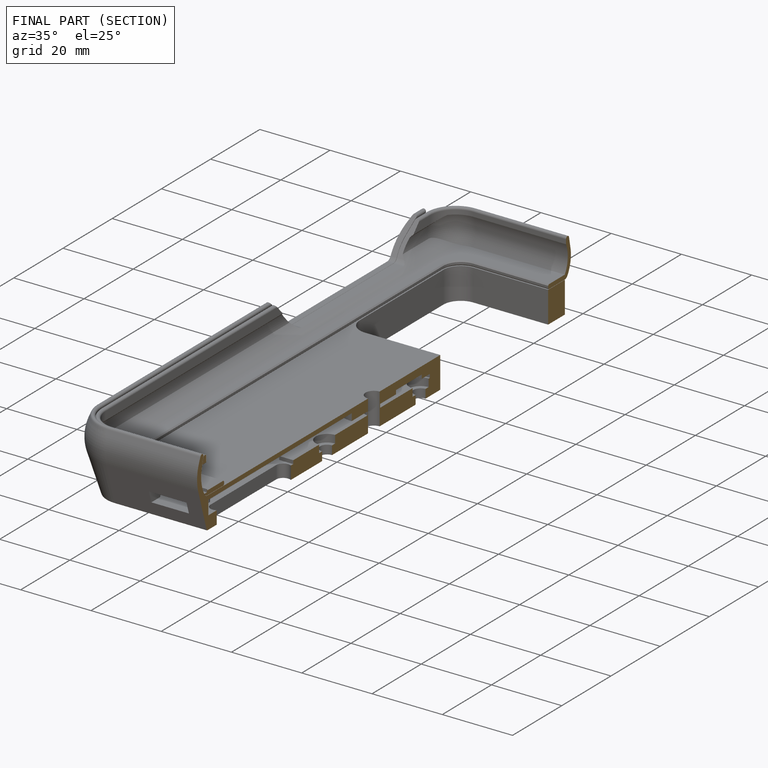
[diagram: finished part — half-section view (interior)]
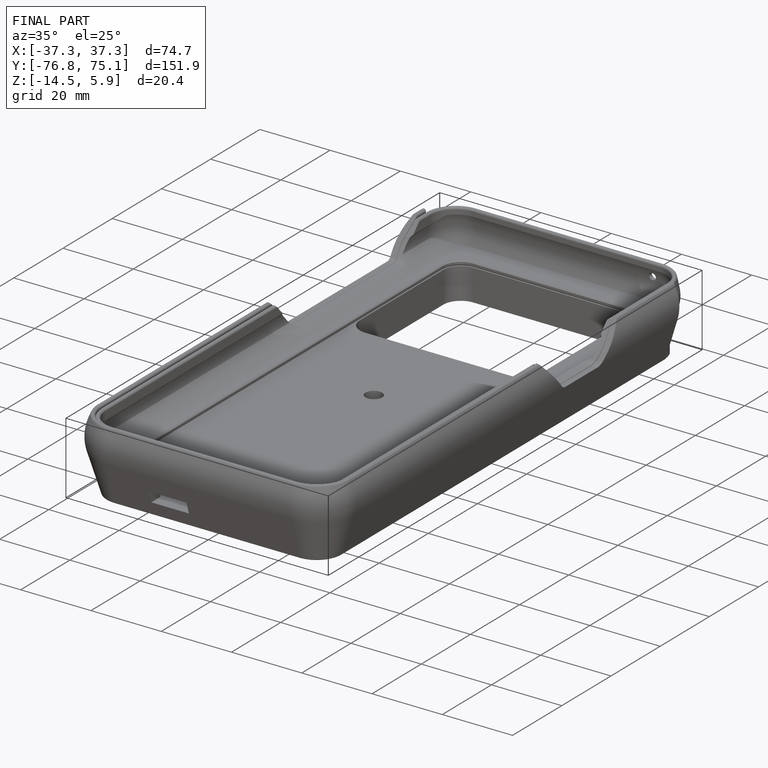
[diagram: finished part — iso view with bounding-box wireframe]
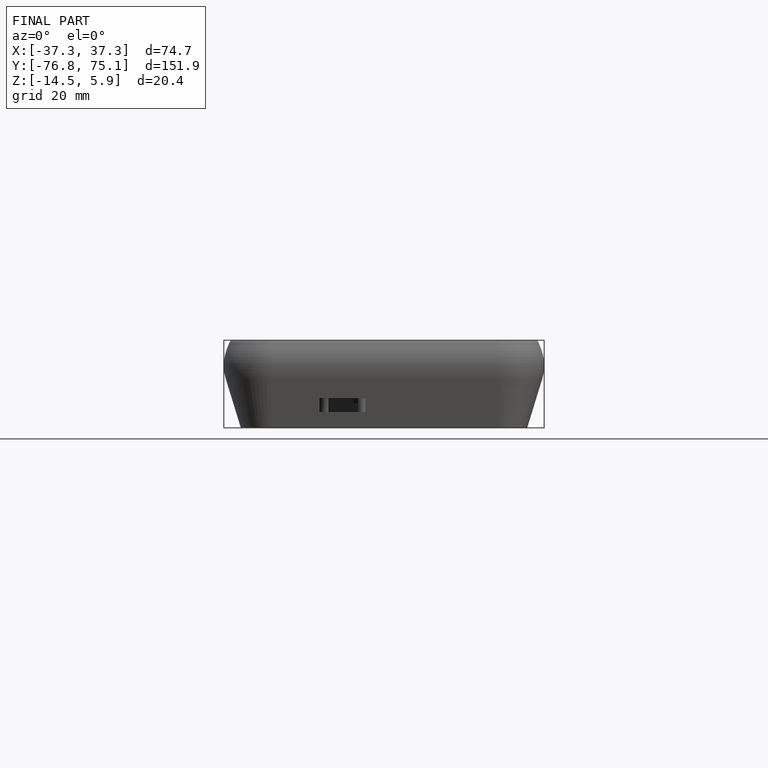
[diagram: finished part — front view with bounding-box wireframe]
